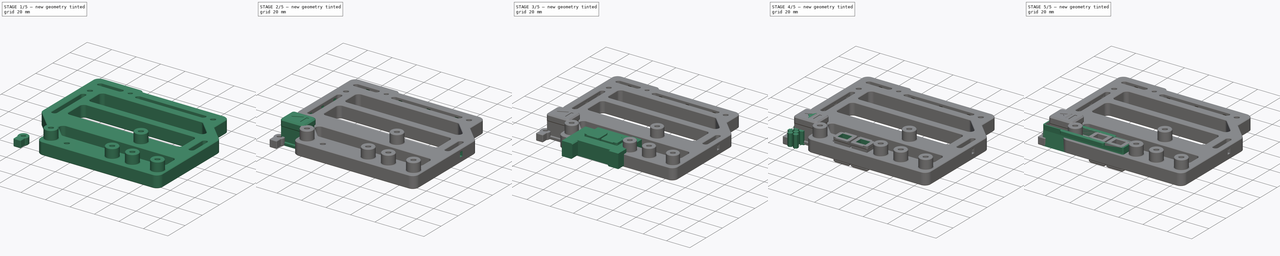
[diagram: build sequence overview — one tinted view per stage of 5, left to right]
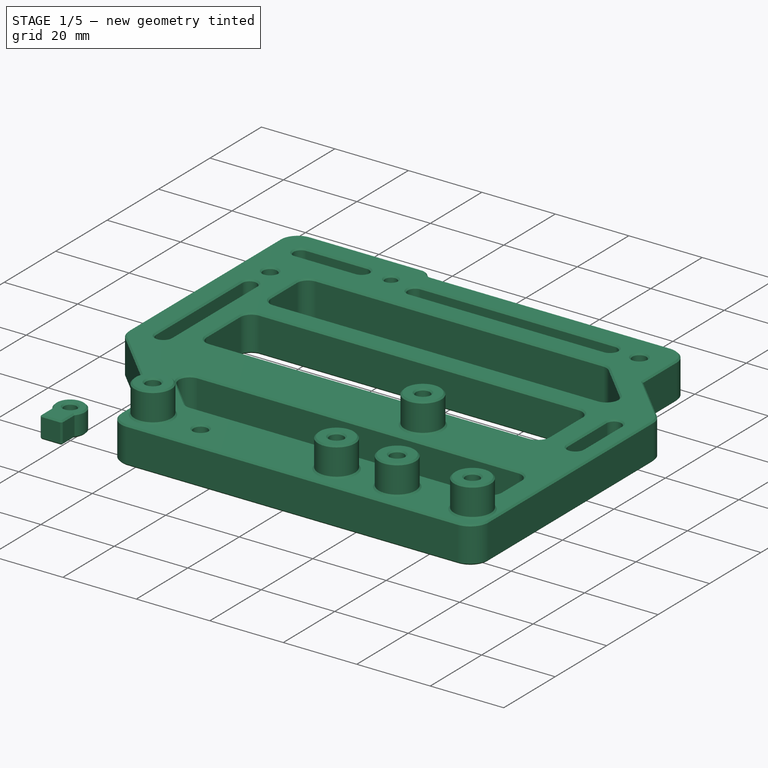
[diagram: stage 1 of 5 — iso view after this stage's code; geometry added in this stage tinted green]
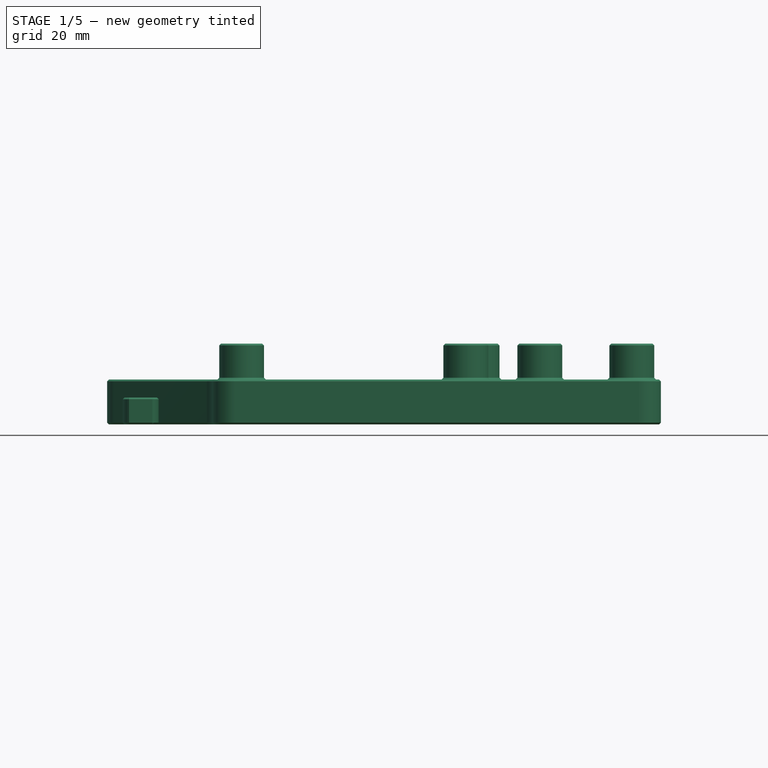
[diagram: stage 1 of 5 — front view after this stage's code; geometry added in this stage tinted green]
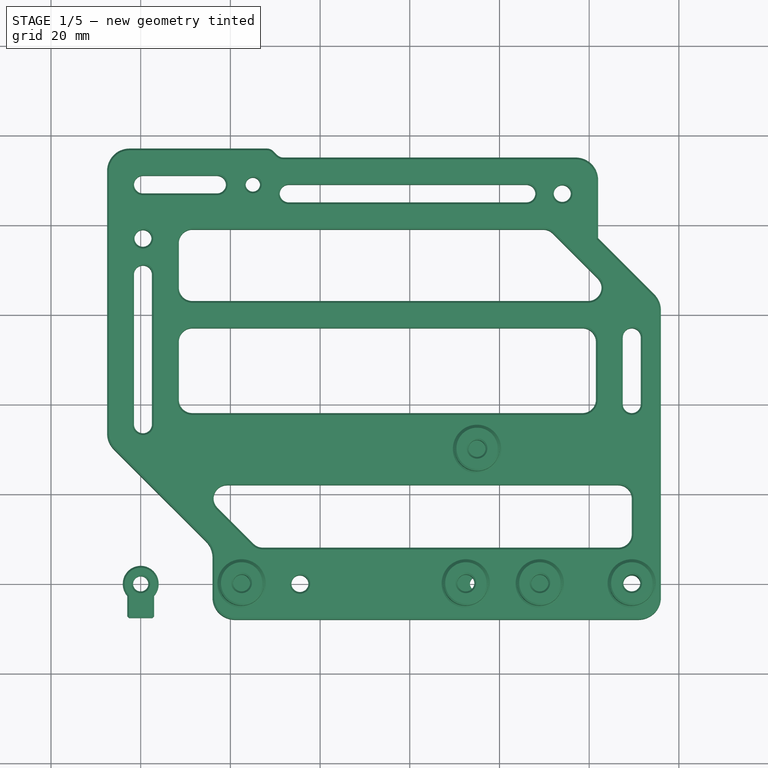
[diagram: stage 1 of 5 — top view after this stage's code; geometry added in this stage tinted green]
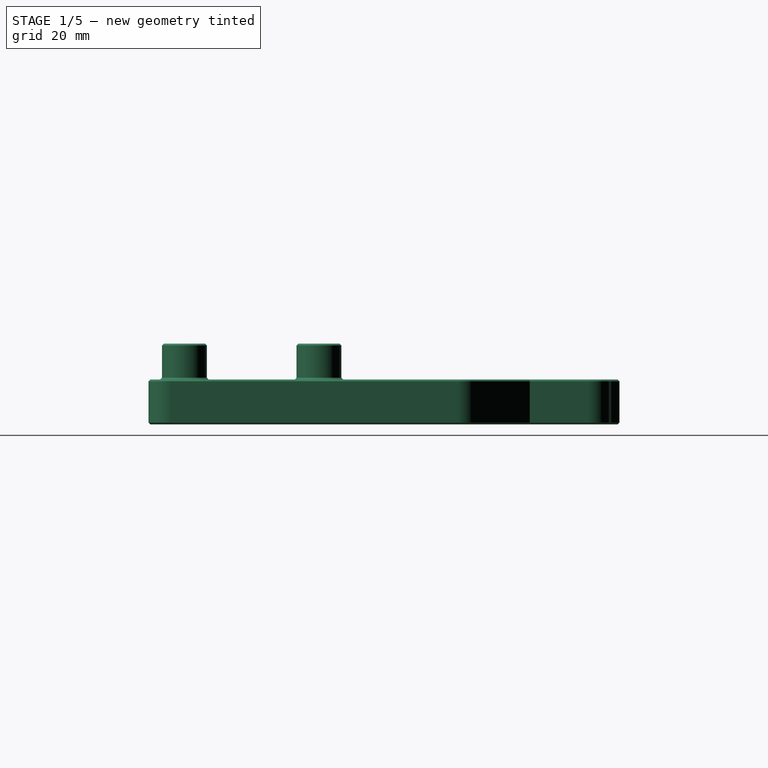
[diagram: stage 1 of 5 — right view after this stage's code; geometry added in this stage tinted green]
FCSTD DOCUMENT  (FreeCAD 0.19R24291 (Git))
Label: auio-pcb-mounter
License: Other
LicenseURL: GPL3
objects: Part::Feature×80, App::Part×52, Part::Box×25, Part::MultiFuse×15, Part::Cut×15, Part::Chamfer×9, Sketcher::SketchObject×8, Part::Cylinder×6, PartDesign::Fillet×5, PartDesign::Pocket×5, Part::Fillet×4, PartDesign::Pad×3, PartDesign::Chamfer×2, PartDesign::Body×2, App::FeaturePython×2, App::AnnotationLabel×2, Spreadsheet::Sheet×1, PartDesign::Plane×1
note: 195 computed .brp shape members not serialized (recipe doc carries the construction recipe); baked Part::Feature solids carry a one-line shape summary decoded from their .brp

FEATURE [Spreadsheet::Sheet] Spreadsheet  label="args"
  cells = A2=ax; B2(a_x)=0; A3=ay; B3(a_y)=0; A4=bx; B4(b_x)=35.5; A5=by; B5(b_y)=0; A6=cx; B6(c_x)=75; A7=xy; B7(c_y)=0; A8=dx; B8(d_x)=109.5; A9=dy; B9(d_y)=0; A10=ex; B10(e_x)=0.5; A11=ey; B11(e_y)=77; A12=fx; B12(f_x)=25; A13=fy; B13(f_y)=89; A14=gx; B14(g_x)=94; A15=gy; B15(g_y)=87; A17=mounting hole small radius; B17(mount_hole_small)=1.6; A18=mounting hole big radius; B18(mount_hole_big)=1.9; B21=12; B22=15.7; B23=19.7; B24=15.7; B25=2.5
FEATURE [Sketcher::SketchObject] Sketch
  FullyConstrained = true
  MapMode = 5
  Support = -> [XY_Plane]
  expr: Constraints[4] = <<args>>.f_x
  expr: Constraints[3] = <<args>>.e_x
  expr: Constraints[0] = <<args>>.b_x
  expr: Constraints[9] = <<args>>.mount_hole_big
  expr: Constraints[17] = <<args>>.g_y
  expr: Constraints[14] = <<args>>.d_y
  expr: Constraints[13] = <<args>>.c_y
  expr: Constraints[7] = <<args>>.mount_hole_big
  expr: Constraints[1] = <<args>>.c_x
  expr: Constraints[12] = <<args>>.b_y
  expr: Constraints[15] = <<args>>.e_y
  expr: Constraints[8] = <<args>>.mount_hole_big
  expr: Constraints[16] = <<args>>.f_y
  expr: Constraints[2] = <<args>>.d_x
  expr: Constraints[5] = <<args>>.g_x
  expr: Constraints[10] = <<args>>.mount_hole_small
  expr: Constraints[6] = <<args>>.mount_hole_big
  expr: Constraints[11] = <<args>>.mount_hole_small
  sketch-geometry (44):
    g0: Circle CenterX=35.5 CenterY=0 CenterZ=0 NormalX=0 NormalY=0 NormalZ=1 AngleXU=0 Radius=1.9
    g1: Circle CenterX=75 CenterY=0 CenterZ=0 NormalX=0 NormalY=0 NormalZ=1 AngleXU=0 Radius=1.6
    g2: Circle CenterX=94 CenterY=87 CenterZ=0 NormalX=0 NormalY=0 NormalZ=1 AngleXU=0 Radius=1.9
    g3: Circle CenterX=25 CenterY=89 CenterZ=0 NormalX=0 NormalY=0 NormalZ=1 AngleXU=0 Radius=1.6
    g4: Circle CenterX=0.5 CenterY=77 CenterZ=0 NormalX=0 NormalY=0 NormalZ=1 AngleXU=0 Radius=1.9
    g5: Circle CenterX=109.5 CenterY=0 CenterZ=0 NormalX=0 NormalY=0 NormalZ=1 AngleXU=0 Radius=1.9
    g6: LineSegment StartX=-7.5 StartY=97 StartZ=0 EndX=-7.5 EndY=31.5 EndZ=0
    g7: LineSegment StartX=16 StartY=-8 StartZ=0 EndX=116 EndY=-8 EndZ=0
    g8: LineSegment StartX=102 StartY=95 StartZ=0 EndX=102 EndY=77 EndZ=0
    g9: LineSegment StartX=-7.5 StartY=31.5 StartZ=0 EndX=16 EndY=8 EndZ=0
    g10: LineSegment StartX=16 StartY=8 StartZ=0 EndX=16 EndY=-8 EndZ=0
    g11: LineSegment StartX=102 StartY=77 StartZ=0 EndX=116 EndY=63 EndZ=0
    g12: LineSegment StartX=116 StartY=63 StartZ=0 EndX=116 EndY=-8 EndZ=0
    g13: ArcOfCircle CenterX=0.5 CenterY=89 CenterZ=0 NormalX=0 NormalY=0 NormalZ=1 AngleXU=0 Radius=2 StartAngle=1.5708 EndAngle=4.71239
    g14: ArcOfCircle CenterX=17 CenterY=89 CenterZ=0 NormalX=0 NormalY=0 NormalZ=1 AngleXU=0 Radius=2 StartAngle=4.71239 EndAngle=7.85398
    g15: LineSegment StartX=0.5 StartY=87 StartZ=0 EndX=17 EndY=87 EndZ=0
    g16: LineSegment StartX=0.5 StartY=91 StartZ=0 EndX=17 EndY=91 EndZ=0
    g17: ArcOfCircle CenterX=0.5 CenterY=69 CenterZ=0 NormalX=0 NormalY=0 NormalZ=1 AngleXU=0 Radius=2 StartAngle=1.8e-15 EndAngle=3.14159
    g18: ArcOfCircle CenterX=0.5 CenterY=35.5 CenterZ=0 NormalX=0 NormalY=0 NormalZ=1 AngleXU=0 Radius=2 StartAngle=3.14159 EndAngle=6.28319
    g19: LineSegment StartX=-1.5 StartY=69 StartZ=0 EndX=-1.5 EndY=35.5 EndZ=0
    g20: LineSegment StartX=2.5 StartY=69 StartZ=0 EndX=2.5 EndY=35.5 EndZ=0
    g21: ArcOfCircle CenterX=109.5 CenterY=55 CenterZ=0 NormalX=0 NormalY=0 NormalZ=1 AngleXU=0 Radius=2 StartAngle=1.7e-15 EndAngle=3.14159
    g22: ArcOfCircle CenterX=109.5 CenterY=40 CenterZ=0 NormalX=0 NormalY=0 NormalZ=1 AngleXU=0 Radius=2 StartAngle=3.14159 EndAngle=6.28319
    g23: LineSegment StartX=107.5 StartY=55 StartZ=0 EndX=107.5 EndY=40 EndZ=0
    g24: LineSegment StartX=111.5 StartY=55 StartZ=0 EndX=111.5 EndY=40 EndZ=0
    g25: LineSegment StartX=-7.5 StartY=97 StartZ=0 EndX=29 EndY=97 EndZ=0
    g26: LineSegment StartX=29 StartY=97 StartZ=0 EndX=31 EndY=95 EndZ=0
    g27: LineSegment StartX=31 StartY=95 StartZ=0 EndX=102 EndY=95 EndZ=0
    g28: ArcOfCircle CenterX=33 CenterY=87 CenterZ=0 NormalX=0 NormalY=0 NormalZ=1 AngleXU=0 Radius=2 StartAngle=1.5708 EndAngle=4.71239
    g29: ArcOfCircle CenterX=86 CenterY=87 CenterZ=0 NormalX=0 NormalY=0 NormalZ=1 AngleXU=0 Radius=2 StartAngle=4.71239 EndAngle=7.85398
    g30: LineSegment StartX=33 StartY=85 StartZ=0 EndX=86 EndY=85 EndZ=0
    g31: LineSegment StartX=33 StartY=89 StartZ=0 EndX=86 EndY=89 EndZ=0
    g32: LineSegment StartX=8.5 StartY=57 StartZ=0 EndX=101.5 EndY=57 EndZ=0
    g33: LineSegment StartX=101.5 StartY=57 StartZ=0 EndX=101.5 EndY=38 EndZ=0
    g34: LineSegment StartX=101.5 StartY=38 StartZ=0 EndX=8.5 EndY=38 EndZ=0
    g35: LineSegment StartX=8.5 StartY=38 StartZ=0 EndX=8.5 EndY=57 EndZ=0
    g36: LineSegment StartX=26 StartY=8 StartZ=0 EndX=109.5 EndY=8 EndZ=0
    g37: LineSegment StartX=109.5 StartY=8 StartZ=0 EndX=109.5 EndY=22 EndZ=0
    g38: LineSegment StartX=109.5 StartY=22 StartZ=0 EndX=12 EndY=22 EndZ=0
    g39: LineSegment StartX=12 StartY=22 StartZ=0 EndX=26 EndY=8 EndZ=0
    g40: LineSegment StartX=8.5 StartY=79 StartZ=0 EndX=8.5 EndY=63 EndZ=0
    g41: LineSegment StartX=8.5 StartY=63 StartZ=0 EndX=107 EndY=63 EndZ=0
    g42: LineSegment StartX=107 StartY=63 StartZ=0 EndX=91 EndY=79 EndZ=0
    g43: LineSegment StartX=91 StartY=79 StartZ=0 EndX=8.5 EndY=79 EndZ=0
  constraints (124):
    c: DistanceX(g-1,g0) = 35.5
    c: DistanceX(g-1,g1) = 75
    c: DistanceX(g-1,g5) = 109.5
    c: DistanceX(g-1,g4) = 0.5
    c: DistanceX(g-1,g3) = 25
    c: DistanceX(g-1,g2) = 94
    c: Radius(g0) = 1.9
    c: Radius(g5) = 1.9
    c: Radius(g4) = 1.9
    c: Radius(g2) = 1.9
    c: Radius(g1) = 1.6
    c: Radius(g3) = 1.6
    c: DistanceY(g0,g-1) = 0
    c: DistanceY(g-1,g1) = 0
    c: DistanceY(g5,g-1) = 0
    c: DistanceY(g-1,g4) = 77
    c: DistanceY(g-1,g3) = 89
    c: DistanceY(g-1,g2) = 87
    c: Horizontal(g7)
    c: Vertical(g8)
    c: DistanceX(g7,g0) = 19.5
    c: DistanceX(g5,g7) = 6.5
    c: DistanceY(g7,g0) = 8
    c: Vertical(g6)
    c: DistanceY(g3,g6) = 8
    c: DistanceX(g6,g4) = 8
    c: DistanceX(g2,g8) = 8
    c: DistanceY(g8,g2) = 10
    c: Coincident(g6,g9)
    c: Coincident(g9,g10)
    c: Coincident(g10,g7)
    c: Vertical(g10)
    c: Coincident(g8,g11)
    c: Coincident(g11,g12)
    c: Vertical(g12)
    c: Angle(g9,g6) = 2.35619
    c: Coincident(g12,g7)
    c: Angle(g11,g8) = 2.35619
    c: DistanceY(g0,g9) = 8
    c: Tangent(g13,g16) = 1.5708
    c: Tangent(g13,g15) = -1.5708
    c: Tangent(g15,g14) = -1.5708
    c: Tangent(g16,g14) = 1.5708
    c: Horizontal(g15)
    c: Equal(g13,g14)
    c: Tangent(g17,g20) = 1.5708
    c: Tangent(g17,g19) = -1.5708
    c: Tangent(g19,g18) = -1.5708
    c: Tangent(g20,g18) = 1.5708
    c: Vertical(g19)
    c: Equal(g17,g18)
    c: Tangent(g21,g24) = 1.5708
    c: Tangent(g21,g23) = -1.5708
    c: Tangent(g23,g22) = -1.5708
    c: Tangent(g24,g22) = 1.5708
    c: Vertical(g23)
    c: Equal(g21,g22)
    c: Vertical(g5,g22)
    c: Vertical(g13,g4)
    c: Horizontal(g14,g3)
    c: Vertical(g4,g17)
    c: DistanceY(g17,g4) = 8
    c: DistanceY(g5,g22) = 40
    c: Radius(g14) = 2
    c: DistanceX(g14,g3) = 8
    c: Radius(g17) = 2
    c: DistanceY(g6,g18) = 4
    c: DistanceY(g21,g11) = 8
    c: Radius(g21) = 2
    c: DistanceY(g2,g8) = 8
    c: Coincident(g6,g25)
    c: Horizontal(g25)
    c: Coincident(g25,g26)
    c: Coincident(g26,g27)
    c: Coincident(g27,g8)
    c: Horizontal(g27)
    c: Angle(g25,g26) = 2.35619
    c: Tangent(g28,g31) = 1.5708
    c: Tangent(g28,g30) = -1.5708
    c: Tangent(g30,g29) = -1.5708
    c: Tangent(g31,g29) = 1.5708
    c: Horizontal(g30)
    c: Equal(g28,g29)
    c: Radius(g28) = 2
    c: DistanceX(g3,g25) = 4
    c: Horizontal(g29,g2)
    c: DistanceX(g29,g2) = 8
    c: DistanceX(g3,g28) = 8
    c: Coincident(g32,g33)
    c: Coincident(g33,g34)
    c: Coincident(g34,g35)
    c: Coincident(g35,g32)
    c: Horizontal(g32)
    c: Horizontal(g34)
    c: Vertical(g33)
    c: Vertical(g35)
    c: DistanceY(g33,g22) = 2
    c: DistanceX(g33,g22) = 8
    c: DistanceX(g18,g34) = 8
    c: Horizontal(g36)
    c: Coincident(g36,g37)
    c: Vertical(g37)
    c: Coincident(g37,g38)
    c: Horizontal(g38)
    c: Coincident(g38,g39)
    c: DistanceY(g5,g36) = 8
    c: Coincident(g36,g39)
    c: Angle(g39,g38) = 0.785398
    c: DistanceX(g9,g36) = 10
    c: DistanceY(g37,g37) = 14
    c: Vertical(g36,g5)
    c: Vertical(g40)
    c: Coincident(g40,g41)
    c: Horizontal(g41)
    c: Coincident(g41,g42)
    c: Coincident(g42,g43)
    c: Coincident(g43,g40)
    c: Horizontal(g43)
    c: Vertical(g40,g32)
    c: DistanceY(g40,g28) = 8
    c: DistanceY(g32,g40) = 6
    c: Angle(g42,g41) = 0.785398
    c: DistanceX(g42,g8) = 11
    c: Horizontal(g41,g11)
FEATURE [PartDesign::Pad] Pad
  Direction = (1,1,1)
  Length = 10
  Length2 = 100
  Profile = -> Sketch
  Type = 0
FEATURE [Part::Feature] Part__Feature  label="SOLID"
  shape: bbox 2.54 x 5.08 x 11.54 mm, 52 faces (baked)
FEATURE [App::Part] PinHeader_1x02_P2_54mm_Vertical  label="PinHeader_1x02_P2.54mm_Vertical"
  Group = -> [Part__Feature]
  Origin = -> Origin001
  Placement = pos=(22.335,15.27,1.65) rot=(0,0,1;1.5708rad)
FEATURE [Part::Feature] Part__Feature001  label="SOLID001"
  shape: bbox 2 x 1.2 x 0.45 mm, 26 faces (baked)
FEATURE [App::Part] R_0805_2012Metric
  Group = -> [Part__Feature001]
  Origin = -> Origin002
  Placement = pos=(36.9,15.27,1.65) rot=(0,0,1;3.14159rad)
FEATURE [Part::Feature] Part__Feature002  label="SOLID002"
  shape: bbox 7.874 x 9.27 x 6.98 mm, 148 faces (baked)
FEATURE [App::Part] DIP_8_W7_62mm  label="DIP-8_W7.62mm"
  Group = -> [Part__Feature002]
  Origin = -> Origin003
  Placement = pos=(14.875,5.27,1.65) rot=(0,0,-1;1.5708rad)
FEATURE [Part::Feature] Part__Feature003  label="SOLID003"
  shape: bbox 9.886 x 10.23 x 10 mm, 54 faces (baked)
FEATURE [App::Part] CP_Radial_D8_0mm_P3_50mm  label="CP_Radial_D8.0mm_P3.50mm"
  Group = -> [Part__Feature003]
  Origin = -> Origin004
  Placement = pos=(28.625,10.77,1.65) rot=(0,0,-1;1.5708rad)
FEATURE [Part::Feature] Part__Feature004  label="SOLID004"
  shape: bbox 2 x 1.2 x 0.45 mm, 26 faces (baked)
FEATURE [App::Part] R_0805_2012Metric001
  Group = -> [Part__Feature004]
  Origin = -> Origin005
  Placement = pos=(-14.4,-21.98,1.65) rot=(0,0,1;0rad)
FEATURE [Part::Feature] Part__Feature005  label="SOLID005"
  shape: bbox 10.16 x 5.08 x 7.787 mm, 69 faces (baked)
FEATURE [App::Part] DIP_4_W7_62mm_Socket  label="DIP-4_W7.62mm_Socket"
  Group = -> [Part__Feature005]
  Origin = -> Origin006
  Placement = pos=(-34.875,8.52,1.65) rot=(0,0,-1;1.5708rad)
FEATURE [Part::Feature] Part__Feature006  label="SOLID006"
  shape: bbox 9.886 x 10.23 x 10 mm, 54 faces (baked)
FEATURE [App::Part] CP_Radial_D8_0mm_P3_50mm001  label="CP_Radial_D8.0mm_P3.50mm001"
  Group = -> [Part__Feature006]
  Origin = -> Origin007
  Placement = pos=(-7.125,3.77,1.65) rot=(0,0,1;0rad)
FEATURE [Part::Feature] Part__Feature007  label="SOLID007"
  shape: bbox 9.886 x 10.23 x 10 mm, 54 faces (baked)
FEATURE [App::Part] CP_Radial_D8_0mm_P3_50mm002  label="CP_Radial_D8.0mm_P3.50mm002"
  Group = -> [Part__Feature007]
  Origin = -> Origin008
  Placement = pos=(-7.125,-5.23,1.65) rot=(0,0,1;0rad)
FEATURE [Part::Feature] Part__Feature008  label="SOLID008"
  shape: bbox 9.886 x 10.23 x 10 mm, 54 faces (baked)
FEATURE [App::Part] CP_Radial_D8_0mm_P3_50mm003  label="CP_Radial_D8.0mm_P3.50mm003"
  Group = -> [Part__Feature008]
  Origin = -> Origin009
  Placement = pos=(28.625,1.77,1.65) rot=(0,0,-1;1.5708rad)
FEATURE [Part::Feature] Part__Feature009  label="SOLID009"
  shape: bbox 2 x 1.2 x 0.45 mm, 26 faces (baked)
FEATURE [App::Part] R_0805_2012Metric002
  Group = -> [Part__Feature009]
  Origin = -> Origin010
  Placement = pos=(-11.125,8.245,1.65) rot=(0,0,-1;1.5708rad)
FEATURE [Part::Feature] Part__Feature010  label="SOLID010"
  shape: bbox 2 x 1.2 x 0.45 mm, 26 faces (baked)
FEATURE [App::Part] R_0805_2012Metric003
  Group = -> [Part__Feature010]
  Origin = -> Origin011
  Placement = pos=(14.65,9.77,1.65) rot=(0,0,1;3.14159rad)
FEATURE [Part::Feature] Part__Feature011  label="SOLID011"
  shape: bbox 2 x 1.2 x 0.45 mm, 26 faces (baked)
FEATURE [App::Part] R_0805_2012Metric004
  Group = -> [Part__Feature011]
  Origin = -> Origin012
  Placement = pos=(10.9,-5.23,1.65) rot=(0,0,1;3.14159rad)
FEATURE [Part::Feature] Part__Feature012  label="SOLID012"
  shape: bbox 2 x 1.2 x 0.45 mm, 26 faces (baked)
FEATURE [App::Part] R_0805_2012Metric005
  Group = -> [Part__Feature012]
  Origin = -> Origin013
  Placement = pos=(3.875,10.795,1.65) rot=(0,0,1;1.5708rad)
FEATURE [Part::Feature] Part__Feature013  label="SOLID013"
  shape: bbox 9.886 x 10.23 x 10 mm, 54 faces (baked)
FEATURE [App::Part] CP_Radial_D8_0mm_P3_50mm004  label="CP_Radial_D8.0mm_P3.50mm004"
  Group = -> [Part__Feature013]
  Origin = -> Origin014
  Placement = pos=(37.875,7.27,1.65) rot=(0,0,1;1.5708rad)
FEATURE [Part::Feature] Part__Feature014  label="SOLID014"
  shape: bbox 9.886 x 10.23 x 10 mm, 54 faces (baked)
FEATURE [App::Part] CP_Radial_D8_0mm_P3_50mm005  label="CP_Radial_D8.0mm_P3.50mm005"
  Group = -> [Part__Feature014]
  Origin = -> Origin015
  Placement = pos=(37.875,-1.73,1.65) rot=(0,0,1;1.5708rad)
FEATURE [Part::Feature] Part__Feature015  label="SOLID015"
  shape: bbox 2 x 1.2 x 0.45 mm, 26 faces (baked)
FEATURE [App::Part] R_0805_2012Metric006
  Group = -> [Part__Feature015]
  Origin = -> Origin016
  Placement = pos=(-22.9,-7.73,1.65) rot=(0,0,1;3.14159rad)
FEATURE [Part::Feature] Part__Feature016  label="SOLID016"
  shape: bbox 2 x 1.2 x 0.45 mm, 26 faces (baked)
FEATURE [App::Part] R_0805_2012Metric007
  Group = -> [Part__Feature016]
  Origin = -> Origin017
  Placement = pos=(-31.625,7.495,1.65) rot=(0,0,1;1.5708rad)
FEATURE [Part::Feature] Part__Feature017  label="SOLID017"
  shape: bbox 2 x 1.2 x 0.45 mm, 26 faces (baked)
FEATURE [App::Part] R_0805_2012Metric008
  Group = -> [Part__Feature017]
  Origin = -> Origin018
  Placement = pos=(-19.1,-21.98,1.65) rot=(0,0,1;3.14159rad)
FEATURE [Part::Feature] Part__Feature018  label="SOLID018"
  shape: bbox 17.4 x 5.75 x 10.4 mm, 189 faces (baked)
FEATURE [App::Part] JST_XH_B06B_XH_A_1x06_P2_50mm_Vertical  label="JST_XH_B06B-XH-A_1x06_P2.50mm_Vertical"
  Group = -> [Part__Feature018]
  Origin = -> Origin019
  Placement = pos=(22.519,20.828,1.65) rot=(0,0,1;0rad)
FEATURE [Part::Feature] Part__Feature019  label="SOLID019"
  shape: bbox 7.4 x 5.75 x 10.4 mm, 89 faces (baked)
FEATURE [App::Part] JST_XH_B02B_XH_A_1x02_P2_50mm_Vertical  label="JST_XH_B02B-XH-A_1x02_P2.50mm_Vertical"
  Group = -> [Part__Feature019]
  Origin = -> Origin020
  Placement = pos=(46.875,8.27,1.65) rot=(0,0,-1;1.5708rad)
FEATURE [Part::Feature] Part__Feature020  label="SOLID020"
  shape: bbox 7.4 x 5.75 x 10.4 mm, 89 faces (baked)
FEATURE [App::Part] JST_XH_B02B_XH_A_1x02_P2_50mm_Vertical001  label="JST_XH_B02B-XH-A_1x02_P2.50mm_Vertical001"
  Group = -> [Part__Feature020]
  Origin = -> Origin021
  Placement = pos=(-46.863,18.074,1.65) rot=(0,0,1;1.5708rad)
FEATURE [Part::Feature] Part__Feature021  label="SOLID021"
  shape: bbox 9.9 x 5.75 x 10.4 mm, 117 faces (baked)
FEATURE [App::Part] JST_XH_B03B_XH_A_1x03_P2_50mm_Vertical  label="JST_XH_B03B-XH-A_1x03_P2.50mm_Vertical"
  Group = -> [Part__Feature021]
  Origin = -> Origin022
  Placement = pos=(41.863,20.828,1.65) rot=(0,0,1;0rad)
FEATURE [Part::Feature] Part__Feature022  label="SOLID022"
  shape: bbox 2 x 1.2 x 0.45 mm, 26 faces (baked)
FEATURE [App::Part] R_0805_2012Metric009
  Group = -> [Part__Feature022]
  Origin = -> Origin023
  Placement = pos=(22.35,12.52,1.65) rot=(0,0,1;0rad)
FEATURE [Part::Feature] Part__Feature023  label="SOLID023"
  shape: bbox 2 x 1.2 x 0.45 mm, 26 faces (baked)
FEATURE [App::Part] R_0805_2012Metric010
  Group = -> [Part__Feature023]
  Origin = -> Origin024
  Placement = pos=(-40.625,7.52,1.65) rot=(0,0,-1;1.5708rad)
FEATURE [Part::Feature] Part__Feature024  label="SOLID024"
  shape: bbox 2 x 1.2 x 0.45 mm, 26 faces (baked)
FEATURE [App::Part] R_0805_2012Metric011
  Group = -> [Part__Feature024]
  Origin = -> Origin025
  Placement = pos=(9.85,7.52,1.65) rot=(0,0,1;3.14159rad)
FEATURE [Part::Feature] Part__Feature025  label="SOLID025"
  shape: bbox 2 x 1.2 x 0.45 mm, 26 faces (baked)
FEATURE [App::Part] R_0805_2012Metric012
  Group = -> [Part__Feature025]
  Origin = -> Origin026
  Placement = pos=(14.65,12.02,1.65) rot=(0,0,1;0rad)
FEATURE [Part::Feature] Part__Feature026  label="SOLID026"
  shape: bbox 2 x 1.2 x 0.45 mm, 26 faces (baked)
FEATURE [App::Part] R_0805_2012Metric013
  Group = -> [Part__Feature026]
  Origin = -> Origin027
  Placement = pos=(4.1,-5.23,1.65) rot=(0,0,1;3.14159rad)
FEATURE [Part::Feature] Part__Feature027  label="SOLID027"
  shape: bbox 2 x 1.2 x 0.45 mm, 26 faces (baked)
FEATURE [App::Part] R_0805_2012Metric014
  Group = -> [Part__Feature027]
  Origin = -> Origin028
  Placement = pos=(18.9,0.02,1.65) rot=(0,0,1;0rad)
FEATURE [Part::Feature] Part__Feature028  label="SOLID028"
  shape: bbox 2 x 1.2 x 0.45 mm, 26 faces (baked)
FEATURE [App::Part] R_0805_2012Metric015
  Group = -> [Part__Feature028]
  Origin = -> Origin029
  Placement = pos=(-1.625,10.745,1.65) rot=(0,0,-1;1.5708rad)
FEATURE [Part::Feature] Part__Feature029  label="SOLID029"
  shape: bbox 2 x 1.2 x 0.45 mm, 26 faces (baked)
FEATURE [App::Part] R_0805_2012Metric016
  Group = -> [Part__Feature029]
  Origin = -> Origin030
  Placement = pos=(1.125,10.745,1.65) rot=(0,0,1;1.5708rad)
FEATURE [Part::Feature] Part__Feature030  label="SOLID030"
  shape: bbox 2 x 1.2 x 0.45 mm, 26 faces (baked)
FEATURE [App::Part] R_0805_2012Metric017
  Group = -> [Part__Feature030]
  Origin = -> Origin031
  Placement = pos=(14.65,7.52,1.65) rot=(0,0,1;3.14159rad)
FEATURE [Part::Feature] Part__Feature031  label="SOLID031"
  shape: bbox 2 x 1.2 x 0.45 mm, 26 faces (baked)
FEATURE [App::Part] R_0805_2012Metric018
  Group = -> [Part__Feature031]
  Origin = -> Origin032
  Placement = pos=(10.9,-7.73,1.65) rot=(0,0,1;3.14159rad)
FEATURE [Part::Feature] Part__Feature032  label="SOLID032"
  shape: bbox 2 x 1.2 x 0.45 mm, 26 faces (baked)
FEATURE [App::Part] R_0805_2012Metric019
  Group = -> [Part__Feature032]
  Origin = -> Origin033
  Placement = pos=(47.35,14.52,1.65) rot=(0,0,1;3.14159rad)
FEATURE [Part::Feature] Part__Feature033  label="SOLID033"
  shape: bbox 2 x 1.2 x 0.45 mm, 26 faces (baked)
FEATURE [App::Part] R_0805_2012Metric020
  Group = -> [Part__Feature033]
  Origin = -> Origin034
  Placement = pos=(47.35,-0.48,1.65) rot=(0,0,1;3.14159rad)
FEATURE [Part::Feature] Part__Feature034  label="SOLID034"
  shape: bbox 2 x 1.2 x 0.45 mm, 26 faces (baked)
FEATURE [App::Part] R_0805_2012Metric021
  Group = -> [Part__Feature034]
  Origin = -> Origin035
  Placement = pos=(47.35,12.27,1.65) rot=(0,0,1;3.14159rad)
FEATURE [Part::Feature] Part__Feature035  label="SOLID035"
  shape: bbox 2 x 1.2 x 0.45 mm, 26 faces (baked)
FEATURE [App::Part] R_0805_2012Metric022
  Group = -> [Part__Feature035]
  Origin = -> Origin036
  Placement = pos=(47.35,1.77,1.65) rot=(0,0,1;3.14159rad)
FEATURE [Part::Feature] Part__Feature036  label="SOLID036"
  shape: bbox 2 x 1.2 x 0.45 mm, 26 faces (baked)
FEATURE [App::Part] R_0805_2012Metric023
  Group = -> [Part__Feature036]
  Origin = -> Origin037
  Placement = pos=(37.125,-17.505,1.65) rot=(0,0,-1;1.5708rad)
FEATURE [Part::Feature] Part__Feature037  label="SOLID037"
  shape: bbox 2 x 1.2 x 0.45 mm, 26 faces (baked)
FEATURE [App::Part] R_0805_2012Metric024
  Group = -> [Part__Feature037]
  Origin = -> Origin038
  Placement = pos=(16.625,-17.505,1.65) rot=(0,0,-1;1.5708rad)
FEATURE [Part::Feature] Part__Feature038  label="SOLID038"
  shape: bbox 2 x 1.2 x 0.45 mm, 26 faces (baked)
FEATURE [App::Part] R_0805_2012Metric025
  Group = -> [Part__Feature038]
  Origin = -> Origin039
  Placement = pos=(0.125,-17.505,1.65) rot=(0,0,-1;1.5708rad)
FEATURE [Part::Feature] Part__Feature039  label="SOLID039"
  shape: bbox 2 x 1.2 x 0.45 mm, 26 faces (baked)
FEATURE [App::Part] R_0805_2012Metric026
  Group = -> [Part__Feature039]
  Origin = -> Origin040
  Placement = pos=(-29.125,7.52,1.65) rot=(0,0,1;1.5708rad)
FEATURE [Part::Feature] Part__Feature040  label="SOLID040"
  shape: bbox 7.4 x 12.4 x 11 mm, 130 faces (baked)
FEATURE [App::Part] SW_Tactile_SPST_Angled_PTS645Vx83_2LFS  label="SW_Tactile_SPST_Angled_PTS645Vx83-2LFS"
  Group = -> [Part__Feature040]
  Origin = -> Origin041
  Placement = pos=(-41.365,-21.336,1.65) rot=(0,0,1;3.14159rad)
FEATURE [Part::Feature] Part__Feature041  label="SOLID041"
  shape: bbox 7.4 x 12.4 x 11 mm, 130 faces (baked)
FEATURE [App::Part] SW_Tactile_SPST_Angled_PTS645Vx83_2LFS001  label="SW_Tactile_SPST_Angled_PTS645Vx83-2LFS001"
  Group = -> [Part__Feature041]
  Origin = -> Origin042
  Placement = pos=(45.625,-21.22,1.65) rot=(0,0,1;3.14159rad)
FEATURE [Part::Feature] Part__Feature042  label="SOLID042"
  shape: bbox 7.4 x 12.4 x 11 mm, 130 faces (baked)
FEATURE [App::Part] SW_Tactile_SPST_Angled_PTS645Vx83_2LFS002  label="SW_Tactile_SPST_Angled_PTS645Vx83-2LFS002"
  Group = -> [Part__Feature042]
  Origin = -> Origin043
  Placement = pos=(25.125,-21.22,1.65) rot=(0,0,1;3.14159rad)
FEATURE [Part::Feature] Part__Feature043  label="SOLID043"
  shape: bbox 7.4 x 12.4 x 11 mm, 130 faces (baked)
FEATURE [App::Part] SW_Tactile_SPST_Angled_PTS645Vx83_2LFS003  label="SW_Tactile_SPST_Angled_PTS645Vx83-2LFS003"
  Group = -> [Part__Feature043]
  Origin = -> Origin044
  Placement = pos=(8.625,-21.336,1.65) rot=(0,0,1;3.14159rad)
FEATURE [Part::Feature] Part__Feature044  label="SOLID044"
  shape: bbox 2 x 1.2 x 0.45 mm, 26 faces (baked)
FEATURE [App::Part] R_0805_2012Metric027
  Group = -> [Part__Feature044]
  Origin = -> Origin045
  Placement = pos=(18.85,-2.23,1.65) rot=(0,0,1;0rad)
FEATURE [Part::Feature] Part__Feature045  label="SOLID045"
  shape: bbox 12.36 x 12.78 x 12 mm, 48 faces (baked)
FEATURE [App::Part] CP_Radial_D10_0mm_P5_00mm  label="CP_Radial_D10.0mm_P5.00mm"
  Group = -> [Part__Feature045]
  Origin = -> Origin046
  Placement = pos=(-1.625,18.02,1.65) rot=(0,0,1;3.14159rad)
FEATURE [Part::Feature] Part__Feature046  label="SOLID046"
  shape: bbox 12.36 x 12.78 x 12 mm, 48 faces (baked)
FEATURE [App::Part] CP_Radial_D10_0mm_P5_00mm001  label="CP_Radial_D10.0mm_P5.00mm001"
  Group = -> [Part__Feature046]
  Origin = -> Origin047
  Placement = pos=(-12.625,18.02,1.65) rot=(0,0,1;3.14159rad)
FEATURE [Part::Feature] Part__Feature047  label="SOLID047"
  shape: bbox 12.36 x 12.78 x 12 mm, 48 faces (baked)
FEATURE [App::Part] CP_Radial_D10_0mm_P5_00mm002  label="CP_Radial_D10.0mm_P5.00mm002"
  Group = -> [Part__Feature047]
  Origin = -> Origin048
  Placement = pos=(-34.625,17.77,1.65) rot=(0,0,1;3.14159rad)
FEATURE [Part::Feature] Part__Feature048  label="SOLID048"
  shape: bbox 12.36 x 12.78 x 12 mm, 48 faces (baked)
FEATURE [App::Part] CP_Radial_D10_0mm_P5_00mm003  label="CP_Radial_D10.0mm_P5.00mm003"
  Group = -> [Part__Feature048]
  Origin = -> Origin049
  Placement = pos=(-23.625,17.77,1.65) rot=(0,0,1;3.14159rad)
FEATURE [Part::Feature] Part__Feature049  label="SOLID049"
  shape: bbox 9.9 x 5.75 x 10.4 mm, 117 faces (baked)
FEATURE [App::Part] JST_XH_B03B_XH_A_1x03_P2_50mm_Vertical001  label="JST_XH_B03B-XH-A_1x03_P2.50mm_Vertical001"
  Group = -> [Part__Feature049]
  Origin = -> Origin050
  Placement = pos=(-46.863,6.27,1.65) rot=(0,0,1;1.5708rad)
FEATURE [Part::Feature] Part__Feature050  label="SOLID050"
  shape: bbox 2.54 x 5.08 x 11.54 mm, 52 faces (baked)
FEATURE [App::Part] PinHeader_1x02_P2_54mm_Vertical001  label="PinHeader_1x02_P2.54mm_Vertical001"
  Group = -> [Part__Feature050]
  Origin = -> Origin051
  Placement = pos=(30.335,15.27,1.65) rot=(0,0,1;1.5708rad)
FEATURE [Part::Feature] Part__Feature051  label="COMPOUND"
  shape: bbox 99.82 x 48.26 x 1.6 mm, 88 faces (baked)
FEATURE [App::Part] Open_CASCADE_STEP_translator_6_9_1  label="Open CASCADE STEP translator 6.9 1"
  Group = -> [PinHeader_1x02_P2_54mm_Vertical,R_0805_2012Metric,DIP_8_W7_62mm,CP_Radial_D8_0mm_P3_50mm,R_0805_2012Metric001,DIP_4_W7_62mm_Socket,CP_Radial_D8_0mm_P3_50mm001,CP_Radial_D8_0mm_P3_50mm002,CP_Radial_D8_0mm_P3_50mm003,R_0805_2012Metric002,R_0805_2012Metric003,R_0805_2012Metric004,R_0805_2012Metric005,CP_Radial_D8_0mm_P3_50mm004,CP_Radial_D8_0mm_P3_50mm005,R_0805_2012Metric006,R_0805_2012Metric007,+35 more]
  Origin = -> Origin052
  Placement = pos=(66.1,12.7,17) rot=(0,0,1;0rad)
FEATURE [PartDesign::Fillet] Fillet
  Base = -> Pad [Edge1,Edge2,Edge5,Edge8,Edge11,Edge14,Edge20]
  BaseFeature = -> Pad
  Radius = 5
  SupportTransform = false
FEATURE [PartDesign::Fillet] Fillet001
  Base = -> Fillet [Edge107,Edge109]
  BaseFeature = -> Fillet
  Radius = 2
  SupportTransform = false
FEATURE [PartDesign::Fillet] Fillet002
  Base = -> Fillet001 [Edge101,Edge100,Edge108,Edge93,Edge97,Edge113,Edge103,Edge109,Edge92,Edge95,Edge111,Edge105]
  BaseFeature = -> Fillet001
  Radius = 3
  SupportTransform = false
FEATURE [PartDesign::Plane] DatumPlane
  AttachmentOffset = pos=(0,0,9) rot=(0,0,1;0rad)
  Length = 167.231
  MapMode = 5
  Placement = pos=(0,0,9) rot=(0,0,1;0rad)
  ResizeMode = 0
  Support = -> [XY_Plane]
  Width = 148.231
FEATURE [Sketcher::SketchObject] Sketch001
  FullyConstrained = true
  MapMode = 5
  Placement = pos=(0,0,9) rot=(0,0,1;0rad)
  Support = -> [DatumPlane]
  expr: Constraints[9] = <<args>>.mount_hole_big
  expr: Constraints[11] = <<args>>.mount_hole_big
  expr: Constraints[10] = <<args>>.mount_hole_big
  expr: Constraints[12] = <<args>>.mount_hole_big
  expr: Constraints[13] = <<args>>.mount_hole_big
  expr: Constraints[21] = <<args>>.d_x
  sketch-geometry (10):
    g0: Circle CenterX=109.5 CenterY=0 CenterZ=0 NormalX=0 NormalY=0 NormalZ=1 AngleXU=0 Radius=5
    g1: Circle CenterX=109.5 CenterY=0 CenterZ=0 NormalX=0 NormalY=0 NormalZ=1 AngleXU=0 Radius=1.9
    g2: Circle CenterX=89 CenterY=0 CenterZ=0 NormalX=0 NormalY=0 NormalZ=1 AngleXU=0 Radius=5
    g3: Circle CenterX=89 CenterY=0 CenterZ=0 NormalX=0 NormalY=0 NormalZ=1 AngleXU=0 Radius=1.9
    g4: Circle CenterX=72.5 CenterY=0 CenterZ=0 NormalX=0 NormalY=0 NormalZ=1 AngleXU=0 Radius=5
    g5: Circle CenterX=72.5 CenterY=0 CenterZ=0 NormalX=0 NormalY=0 NormalZ=1 AngleXU=0 Radius=1.9
    g6: Circle CenterX=22.5 CenterY=0 CenterZ=0 NormalX=0 NormalY=0 NormalZ=1 AngleXU=0 Radius=5
    g7: Circle CenterX=22.5 CenterY=0 CenterZ=0 NormalX=0 NormalY=0 NormalZ=1 AngleXU=0 Radius=1.9
    g8: Circle CenterX=75 CenterY=30 CenterZ=0 NormalX=0 NormalY=0 NormalZ=1 AngleXU=0 Radius=5
    g9: Circle CenterX=75 CenterY=30 CenterZ=0 NormalX=0 NormalY=0 NormalZ=1 AngleXU=0 Radius=1.9
  constraints (25):
    c: PointOnObject(g0,g-1)
    c: Coincident(g1,g0)
    c: PointOnObject(g2,g-1)
    c: Coincident(g3,g2)
    c: PointOnObject(g4,g-1)
    c: Coincident(g5,g4)
    c: PointOnObject(g6,g-1)
    c: Coincident(g7,g6)
    c: Coincident(g9,g8)
    c: Radius(g9) = 1.9
    c: Radius(g1) = 1.9
    c: Radius(g3) = 1.9
    c: Radius(g5) = 1.9
    c: Radius(g7) = 1.9
    c: Radius(g6) = 5
    c: Radius(g4) = 5
    c: Radius(g2) = 5
    c: Radius(g0) = 5
    c: Radius(g8) = 5
    c: DistanceX(g4,g8) = 2.5
    c: DistanceY(g4,g8) = 30
    c: DistanceX(g-1,g0) = 109.5
    c: DistanceX(g2,g0) = 20.5
    c: DistanceX(g4,g2) = 16.5
    c: DistanceX(g6,g4) = 50
FEATURE [PartDesign::Pad] Pad001
  BaseFeature = -> Fillet002
  Direction = (1,1,1)
  Length = 9
  Length2 = 100
  Profile = -> Sketch001
  Type = 0
FEATURE [PartDesign::Chamfer] Chamfer
  Angle = 45
  Base = -> Pad001 [Face1,Face67,Face79,Face82,Face78,Face80,Face81]
  BaseFeature = -> Pad001
  ChamferType = 0
  FlipDirection = false
  Size = 0.4
  Size2 = 1
  SupportTransform = false
FEATURE [PartDesign::Body] Body  label="under-plate"
  Group = -> [Sketch,Pad,Fillet,Fillet001,Fillet002,DatumPlane,Sketch001,Pad001,Chamfer,Sketch005,Pocket002,Sketch006,Pocket003,Sketch007,Pocket004,Chamfer009008004003002002004004004004]
  Origin = -> Origin
  Tip = -> Chamfer009008004003002002004004004004
FEATURE [App::FeaturePython] Dimension  label="Distance"  # Draft dimension (typed FeaturePython)
  Diameter = false
  Dimline = (44.2948,2.502,20.4)
  Direction = (0,0,0)
  Distance = 48.2787
  End = (66.1,12.7,18.6)
  Normal = (0,0,1)
  Start = (22.4895,-7.696,22.2)
FEATURE [App::AnnotationLabel] DistanceLbl
  BasePosition = (44.2948,2.502,20.4)
  LabelText = ds: 48.2786512363643 mm | dx: 43.61045 | dy: 20.395999999999997 | dz: 3.599999999999998
  TextPosition = (0,0,0)
FEATURE [App::FeaturePython] Dimension001  label="Distance001"  # Draft dimension (typed FeaturePython)
  Diameter = false
  Dimline = (22.4823,-3.863,20.4)
  Direction = (0,0,0)
  Distance = 8.46922
  End = (22.475,-0.03,18.6)
  Normal = (0,0,1)
  Start = (22.4895,-7.696,22.2)
FEATURE [App::AnnotationLabel] DistanceLbl001
  BasePosition = (22.4823,-3.863,20.4)
  LabelText = ds: 8.469224740346661 mm | dx: 0.01454999999999984 | dy: 7.665999999999999 | dz: 3.599999999999998
  TextPosition = (0,0,0)
FEATURE [Part::Cylinder] Cylinder002
  Angle = 360
  AttacherType = Attacher::AttachEngine3D
  Height = 6
  Radius = 4
FEATURE [Part::Cylinder] Cylinder003
  Angle = 360
  AttacherType = Attacher::AttachEngine3D
  Height = 6
  Radius = 1.7
FEATURE [Part::Box] Box027  label="Cube027"
  AttacherType = Attacher::AttachEngine3D
  Height = 6
  Length = 6
  Placement = pos=(-3,-7.1,0) rot=(0,0,1;0rad)
  Width = 8
FEATURE [Part::MultiFuse] Fusion001004009018
  Shapes = -> [Box027,Cylinder002]
FEATURE [Part::Cut] Cut049
  Base = -> Fusion001004009018
  Refine = true
  Tool = -> Cylinder003
FEATURE [Part::Chamfer] Chamfer009008004003002002004004004005
  Base = -> Cut049
  Edges = 18 edges r=0.4: [Edge1,Edge3,Edge4,Edge5,Edge6,Edge7,Edge8,Edge10,Edge11,Edge12,Edge13,Edge14,Edge15,Edge17,Edge18,Edge19,Edge20,Edge21]
FEATURE [Part::Cylinder] Cylinder004
  Angle = 360
  AttacherType = Attacher::AttachEngine3D
  Height = 6
  Radius = 4
FEATURE [Part::Cylinder] Cylinder005
  Angle = 360
  AttacherType = Attacher::AttachEngine3D
  Height = 6
  Radius = 1.7
FEATURE [Part::Box] Box028  label="Cube028"
  AttacherType = Attacher::AttachEngine3D
  Height = 6
  Length = 6
  Placement = pos=(-3,-7.6,0) rot=(0,0,1;0rad)
  Width = 8
FEATURE [Part::MultiFuse] Fusion001004009019
  Shapes = -> [Box028,Cylinder004]
FEATURE [Part::Cut] Cut050
  Base = -> Fusion001004009019
  Refine = true
  Tool = -> Cylinder005
FEATURE [Part::Chamfer] Chamfer009008004003002002004004004006
  Base = -> Cut050
  Edges = 18 edges r=0.4: [Edge1,Edge3,Edge4,Edge5,Edge6,Edge7,Edge8,Edge10,Edge11,Edge12,Edge13,Edge14,Edge15,Edge17,Edge18,Edge19,Edge20,Edge21]
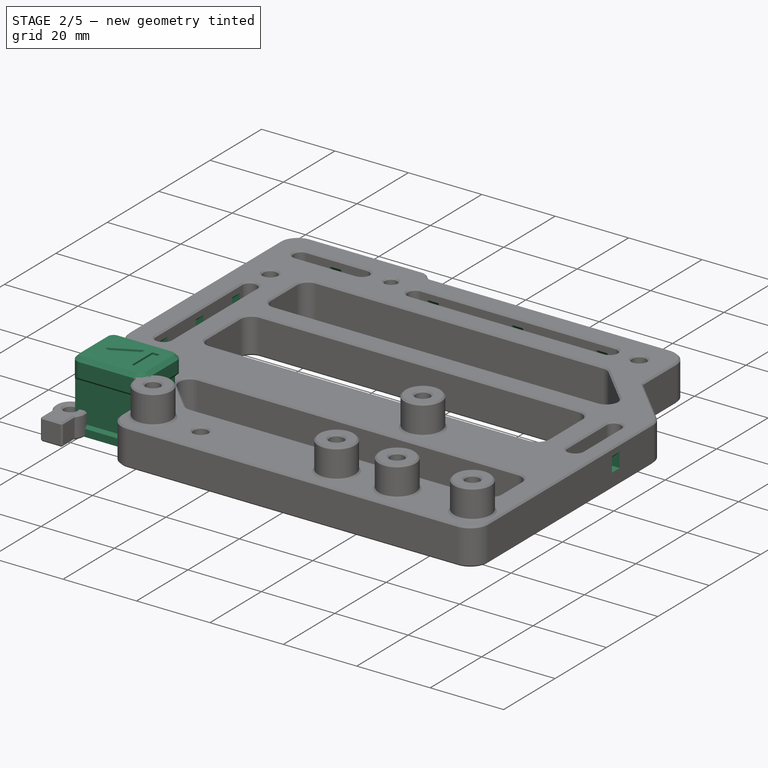
[diagram: stage 2 of 5 — iso view after this stage's code; geometry added in this stage tinted green]
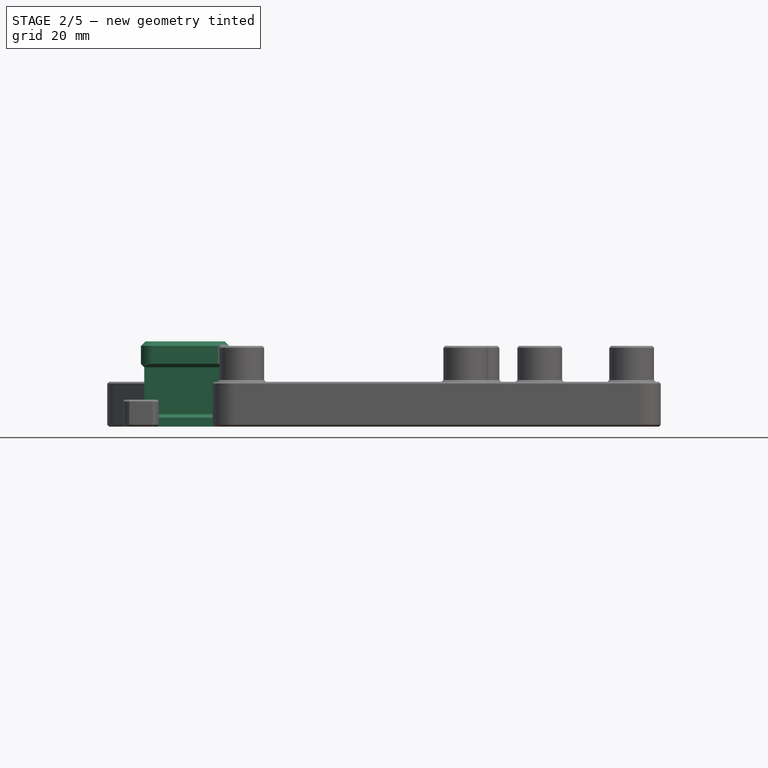
[diagram: stage 2 of 5 — front view after this stage's code; geometry added in this stage tinted green]
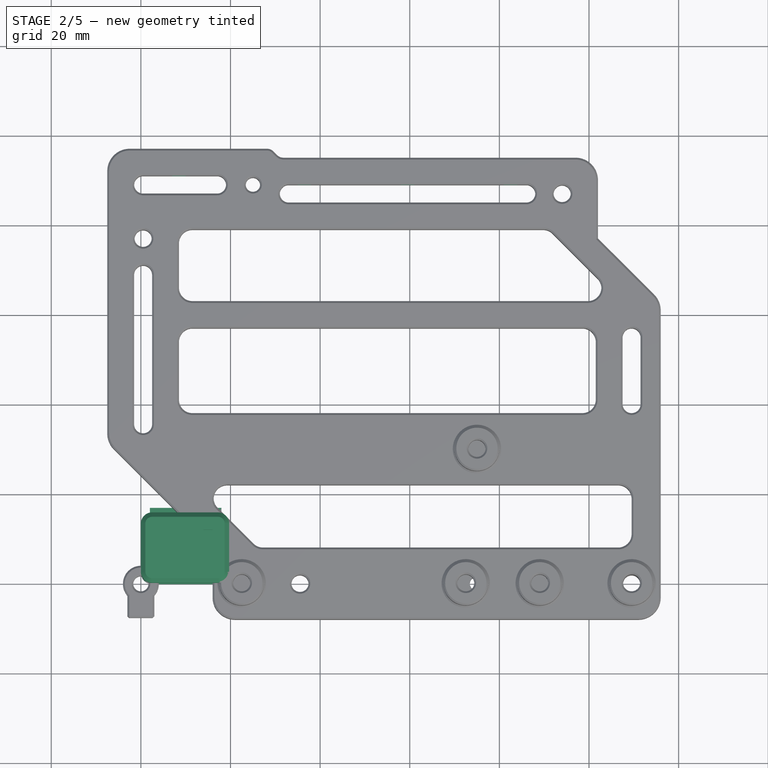
[diagram: stage 2 of 5 — top view after this stage's code; geometry added in this stage tinted green]
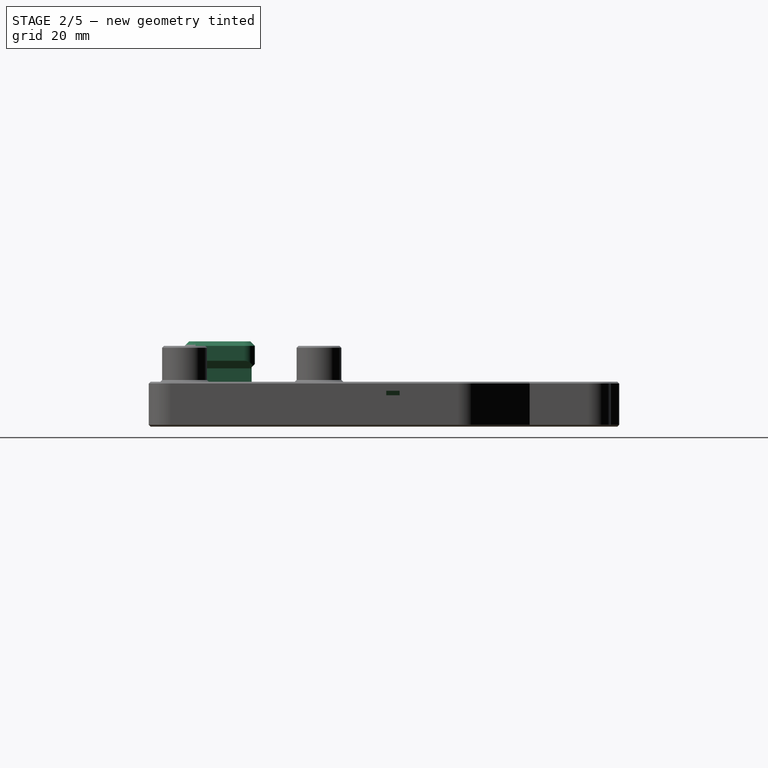
[diagram: stage 2 of 5 — right view after this stage's code; geometry added in this stage tinted green]
FEATURE [Part::Box] Box  label="Cube"
  AttacherType = Attacher::AttachEngine3D
  Height = 19
  Length = 19.7
  Width = 15.7
FEATURE [Part::Box] Box001  label="Cube001"
  AttacherType = Attacher::AttachEngine3D
  Height = 1
  Length = 16
  Placement = pos=(2,14,0) rot=(0,0,1;0rad)
  Width = 3
FEATURE [Part::Cylinder] Cylinder
  Angle = 360
  AttacherType = Attacher::AttachEngine3D
  Height = 3
  Placement = pos=(10,8,0) rot=(0,0,1;0rad)
  Radius = 4
FEATURE [Part::Box] Box002  label="Cube002"
  AttacherType = Attacher::AttachEngine3D
  Height = 16
  Length = 10
  Placement = pos=(18,-1,0) rot=(0,0,1;0rad)
  Width = 18
FEATURE [Part::Chamfer] Chamfer002
  Base = -> Box002
  Edges = 1 edges r=3: [Edge2]
FEATURE [Part::Fillet] Fillet009
  Base = -> Box
  Edges = 4 edges r=2.5: [Edge1,Edge3,Edge5,Edge7]
FEATURE [Part::Chamfer] Chamfer007
  Base = -> Fillet009
  Edges = 8 edges r=1: [Edge1,Edge5,Edge6,Edge7,Edge8,Edge9,Edge10,Edge11]
FEATURE [Part::Cut] Cut
  Base = -> Chamfer007
  Tool = -> Chamfer002
FEATURE [Part::MultiFuse] Fusion
  Shapes = -> [Cut,Box001]
FEATURE [Part::Box] Box025  label="Cube025"
  AttacherType = Attacher::AttachEngine3D
  Height = 12
  Length = 26
  Placement = pos=(-3,-15,2) rot=(0,0,1;0rad)
  Width = 10
FEATURE [Part::Chamfer] Chamfer009008004003002002004004004
  Base = -> Box025
  Edges = 2 edges r=0.75: [Edge11,Edge12]
  Placement = pos=(0,5.75,0) rot=(0,0,1;0rad)
FEATURE [Part::Feature] Chamfer009008004003002002004004004001
  Placement = pos=(5.75,16,0) rot=(0,0,-1;1.5708rad)
  shape: bbox 10 x 26 x 12 mm, 8 faces (baked)
FEATURE [Part::Feature] Chamfer009008004003002002004004004002
  Placement = pos=(20,9.95,0) rot=(0,0,1;3.14159rad)
  shape: bbox 26 x 10 x 12 mm, 8 faces (baked)
FEATURE [Part::MultiFuse] Fusion001004009016
  Shapes = -> [Chamfer009008004003002002004004004002,Chamfer009008004003002002004004004001,Chamfer009008004003002002004004004]
FEATURE [Part::Cut] Cut046
  Base = -> Fusion
  Tool = -> Body002011003001
FEATURE [Part::Cut] Cut047
  Base = -> Cut046
  Tool = -> Fusion001004009016
FEATURE [Sketcher::SketchObject] Sketch005
  FullyConstrained = true
  MapMode = 5
  Placement = pos=(-7.5,0,0) rot=(0.57735,-0.57735,-0.57735;2.0944rad)
  Support = -> [Chamfer]
  sketch-geometry (12):
    g0: LineSegment StartX=-68 StartY=7 StartZ=0 EndX=-65 EndY=7 EndZ=0
    g1: LineSegment StartX=-65 StartY=7 StartZ=0 EndX=-65 EndY=4 EndZ=0
    g2: LineSegment StartX=-65 StartY=4 StartZ=0 EndX=-68 EndY=4 EndZ=0
    g3: LineSegment StartX=-68 StartY=4 StartZ=0 EndX=-68 EndY=7 EndZ=0
    g4: LineSegment StartX=-54 StartY=7 StartZ=0 EndX=-51 EndY=7 EndZ=0
    g5: LineSegment StartX=-51 StartY=7 StartZ=0 EndX=-51 EndY=4 EndZ=0
    g6: LineSegment StartX=-51 StartY=4 StartZ=0 EndX=-54 EndY=4 EndZ=0
    g7: LineSegment StartX=-54 StartY=4 StartZ=0 EndX=-54 EndY=7 EndZ=0
    g8: LineSegment StartX=-40 StartY=7 StartZ=0 EndX=-37 EndY=7 EndZ=0
    g9: LineSegment StartX=-37 StartY=7 StartZ=0 EndX=-37 EndY=4 EndZ=0
    g10: LineSegment StartX=-37 StartY=4 StartZ=0 EndX=-40 EndY=4 EndZ=0
    g11: LineSegment StartX=-40 StartY=4 StartZ=0 EndX=-40 EndY=7 EndZ=0
  constraints (36):
    c: Coincident(g0,g1)
    c: Coincident(g1,g2)
    c: Coincident(g2,g3)
    c: Coincident(g3,g0)
    c: Horizontal(g0)
    c: Horizontal(g2)
    c: Vertical(g1)
    c: Vertical(g3)
    c: Coincident(g4,g5)
    c: Coincident(g5,g6)
    c: Coincident(g6,g7)
    c: Coincident(g7,g4)
    c: Horizontal(g4)
    c: Horizontal(g6)
    c: Vertical(g5)
    c: Vertical(g7)
    c: Coincident(g8,g9)
    c: Coincident(g9,g10)
    c: Coincident(g10,g11)
    c: Coincident(g11,g8)
    c: Horizontal(g8)
    c: Horizontal(g10)
    c: Vertical(g9)
    c: Vertical(g11)
    c: Horizontal(g1,g6)
    c: Horizontal(g6,g10)
    c: Horizontal(g0,g4)
    c: Horizontal(g4,g8)
    c: DistanceY(g3,g3) = 3
    c: DistanceX(g9,g-1) = 37
    c: DistanceX(g8,g8) = 3
    c: DistanceX(g4,g4) = 3
    c: DistanceX(g0,g0) = 3
    c: DistanceY(g-1,g9) = 4
    c: DistanceX(g5,g10) = 11
    c: DistanceX(g1,g6) = 11
FEATURE [PartDesign::Pocket] Pocket002
  BaseFeature = -> Chamfer
  Length = 0
  Length2 = 100
  Profile = -> Sketch005
  Type = 3
  UpToFace = -> Chamfer [Face101]
FEATURE [Sketcher::SketchObject] Sketch006
  FullyConstrained = true
  MapMode = 5
  Placement = pos=(116,0,0) rot=(0.57735,0.57735,0.57735;2.0944rad)
  Support = -> [Pocket002]
  sketch-geometry (4):
    g0: LineSegment StartX=45 StartY=7 StartZ=0 EndX=48 EndY=7 EndZ=0
    g1: LineSegment StartX=48 StartY=7 StartZ=0 EndX=48 EndY=4 EndZ=0
    g2: LineSegment StartX=48 StartY=4 StartZ=0 EndX=45 EndY=4 EndZ=0
    g3: LineSegment StartX=45 StartY=4 StartZ=0 EndX=45 EndY=7 EndZ=0
  constraints (12):
    c: Coincident(g0,g1)
    c: Coincident(g1,g2)
    c: Coincident(g2,g3)
    c: Coincident(g3,g0)
    c: Horizontal(g0)
    c: Horizontal(g2)
    c: Vertical(g1)
    c: Vertical(g3)
    c: DistanceX(g0,g0) = 3
    c: DistanceX(g-1,g2) = 45
    c: DistanceY(g1,g1) = 3
    c: DistanceY(g-1,g2) = 4
FEATURE [PartDesign::Pocket] Pocket003
  BaseFeature = -> Pocket002
  Length = 0
  Length2 = 100
  Profile = -> Sketch006
  Type = 3
  UpToFace = -> Pocket002 [Face106]
FEATURE [Sketcher::SketchObject] Sketch007
  FullyConstrained = true
  MapMode = 5
  Placement = pos=(0,97,0) rot=(0,0.707107,0.707107;3.14159rad)
  Support = -> [Pocket003]
  sketch-geometry (16):
    g0: LineSegment StartX=-84 StartY=7 StartZ=0 EndX=-81 EndY=7 EndZ=0
    g1: LineSegment StartX=-81 StartY=7 StartZ=0 EndX=-81 EndY=4 EndZ=0
    g2: LineSegment StartX=-81 StartY=4 StartZ=0 EndX=-84 EndY=4 EndZ=0
    g3: LineSegment StartX=-84 StartY=4 StartZ=0 EndX=-84 EndY=7 EndZ=0
    g4: LineSegment StartX=-61 StartY=7 StartZ=0 EndX=-58 EndY=7 EndZ=0
    g5: LineSegment StartX=-58 StartY=7 StartZ=0 EndX=-58 EndY=4 EndZ=0
    g6: LineSegment StartX=-58 StartY=4 StartZ=0 EndX=-61 EndY=4 EndZ=0
    g7: LineSegment StartX=-61 StartY=4 StartZ=0 EndX=-61 EndY=7 EndZ=0
    g8: LineSegment StartX=-38 StartY=7 StartZ=0 EndX=-35 EndY=7 EndZ=0
    g9: LineSegment StartX=-35 StartY=7 StartZ=0 EndX=-35 EndY=4 EndZ=0
    g10: LineSegment StartX=-35 StartY=4 StartZ=0 EndX=-38 EndY=4 EndZ=0
    g11: LineSegment StartX=-38 StartY=4 StartZ=0 EndX=-38 EndY=7 EndZ=0
    g12: LineSegment StartX=-10 StartY=7 StartZ=0 EndX=-7 EndY=7 EndZ=0
    g13: LineSegment StartX=-7 StartY=7 StartZ=0 EndX=-7 EndY=4 EndZ=0
    g14: LineSegment StartX=-7 StartY=4 StartZ=0 EndX=-10 EndY=4 EndZ=0
    g15: LineSegment StartX=-10 StartY=4 StartZ=0 EndX=-10 EndY=7 EndZ=0
  constraints (48):
    c: Coincident(g0,g1)
    c: Coincident(g1,g2)
    c: Coincident(g2,g3)
    c: Coincident(g3,g0)
    c: Horizontal(g0)
    c: Horizontal(g2)
    c: Vertical(g1)
    c: Vertical(g3)
    c: Coincident(g4,g5)
    c: Coincident(g5,g6)
    c: Coincident(g6,g7)
    c: Coincident(g7,g4)
    c: Horizontal(g4)
    c: Horizontal(g6)
    c: Vertical(g5)
    c: Vertical(g7)
    c: Coincident(g8,g9)
    c: Coincident(g9,g10)
    c: Coincident(g10,g11)
    c: Coincident(g11,g8)
    c: Horizontal(g8)
    c: Horizontal(g10)
    c: Vertical(g9)
    c: Vertical(g11)
    c: Coincident(g12,g13)
    c: Coincident(g13,g14)
    c: Coincident(g14,g15)
    c: Coincident(g15,g12)
    c: Horizontal(g12)
    c: Horizontal(g14)
    c: Vertical(g13)
    c: Vertical(g15)
    c: Horizontal(g2,g6)
    c: Horizontal(g6,g10)
    c: Horizontal(g10,g14)
    c: Horizontal(g0,g4)
    c: Horizontal(g4,g8)
    c: Horizontal(g8,g12)
    c: DistanceY(g1,g1) = 3
    c: DistanceX(g13,g-1) = 7
    c: DistanceY(g-1,g13) = 4
    c: DistanceX(g12,g12) = 3
    c: DistanceX(g8,g8) = 3
    c: DistanceX(g4,g4) = 3
    c: DistanceX(g0,g0) = 3
    c: DistanceX(g9,g14) = 25
    c: DistanceX(g5,g10) = 20
    c: DistanceX(g1,g6) = 20
FEATURE [PartDesign::Pocket] Pocket004
  BaseFeature = -> Pocket003
  Length = 0
  Length2 = 100
  Profile = -> Sketch007
  Type = 3
  UpToFace = -> Pocket003 [Face94]
FEATURE [PartDesign::Chamfer] Chamfer009008004003002002004004004004
  Angle = 45
  Base = -> Pocket004 [Edge226,Edge340,Edge240,Edge235,Edge231,Edge285,Edge289,Edge293,Edge328,Edge320,Edge314,Edge310,Edge260,Edge269,Edge273,Edge277]
  BaseFeature = -> Pocket004
  ChamferType = 0
  FlipDirection = false
  Size = 1
  Size2 = 1
  SupportTransform = false
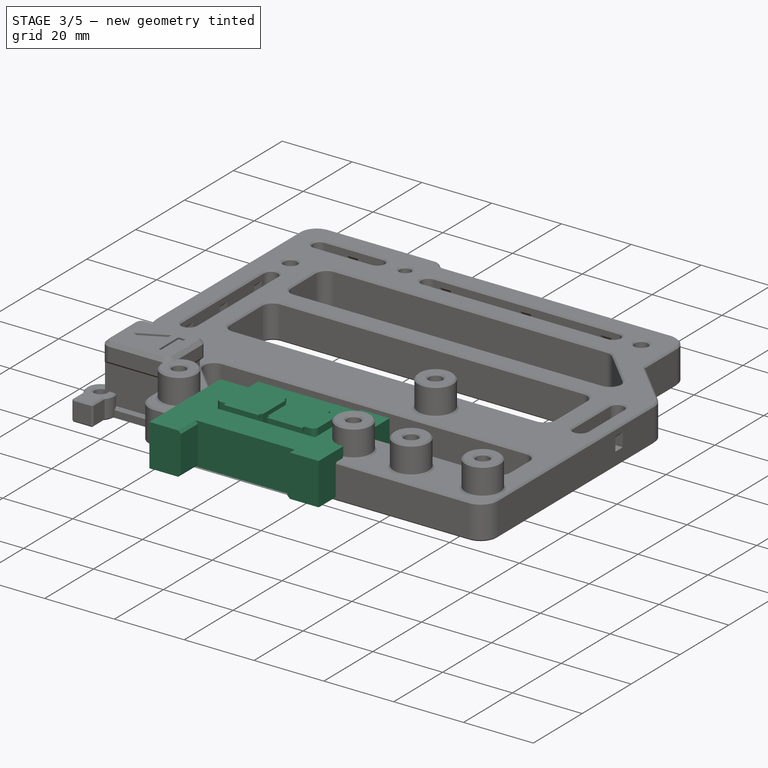
[diagram: stage 3 of 5 — iso view after this stage's code; geometry added in this stage tinted green]
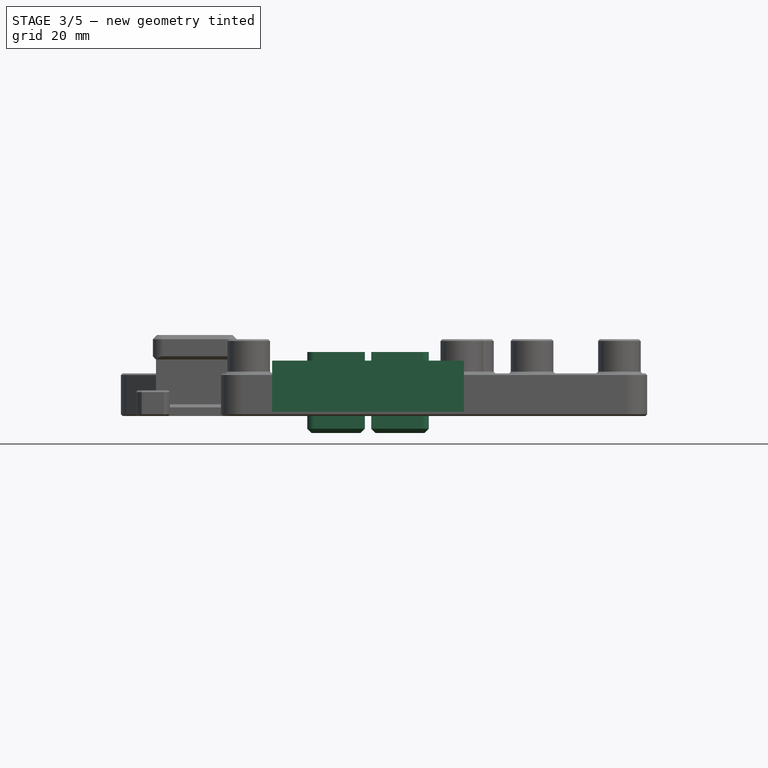
[diagram: stage 3 of 5 — front view after this stage's code; geometry added in this stage tinted green]
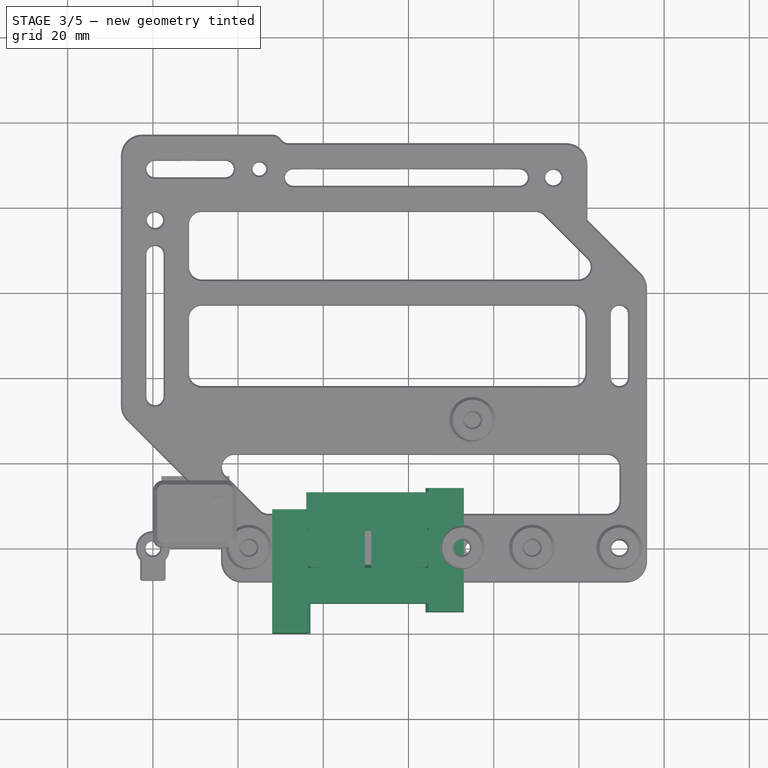
[diagram: stage 3 of 5 — top view after this stage's code; geometry added in this stage tinted green]
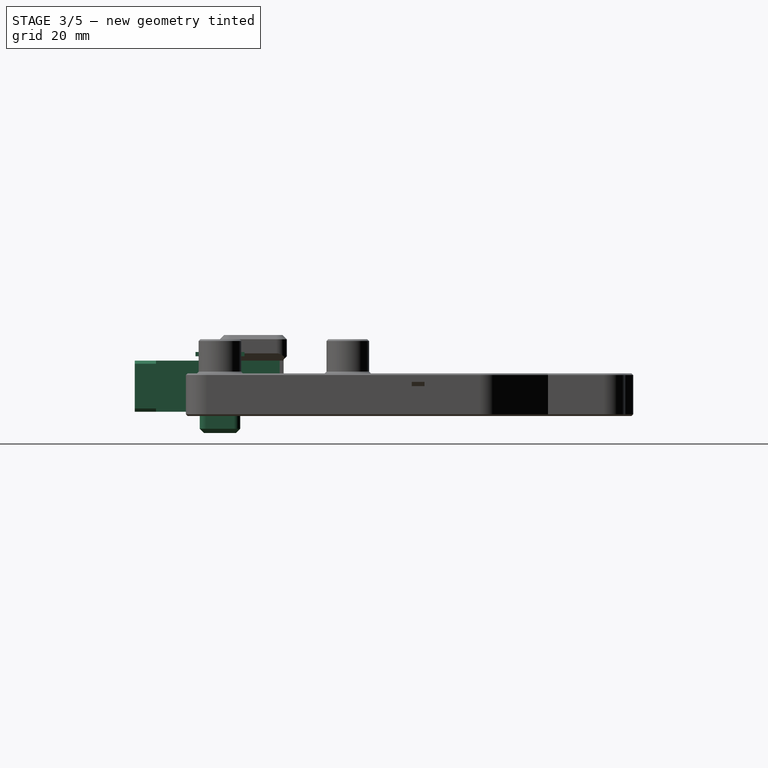
[diagram: stage 3 of 5 — right view after this stage's code; geometry added in this stage tinted green]
FEATURE [Part::Box] Box012  label="Cube012"
  AttacherType = Attacher::AttachEngine3D
  Height = 19
  Length = 13.5
  Placement = pos=(36.25,-4.75,-4) rot=(0,0,1;0rad)
  Width = 9.5
FEATURE [Part::Box] Box013  label="Cube013"
  AttacherType = Attacher::AttachEngine3D
  Height = 19
  Length = 13.5
  Placement = pos=(51.25,-4.75,-4) rot=(0,0,1;0rad)
  Width = 9.5
FEATURE [Part::Box] Box014  label="Cube014"
  AttacherType = Attacher::AttachEngine3D
  Height = 1
  Length = 10
  Placement = pos=(39.25,-5.75,14) rot=(0,0,1;0rad)
  Width = 2
FEATURE [Part::Box] Box015  label="Cube015"
  AttacherType = Attacher::AttachEngine3D
  Height = 1
  Length = 10
  Placement = pos=(39.25,3.75,14) rot=(0,0,1;0rad)
  Width = 2
FEATURE [Part::Box] Box016  label="Cube016"
  AttacherType = Attacher::AttachEngine3D
  Height = 1
  Length = 10
  Placement = pos=(51.75,3.75,14) rot=(0,0,1;0rad)
  Width = 2
FEATURE [Part::Box] Box017  label="Cube017"
  AttacherType = Attacher::AttachEngine3D
  Height = 1
  Length = 10
  Placement = pos=(51.75,-5.75,14) rot=(0,0,1;0rad)
  Width = 2
FEATURE [Part::Box] Box018  label="Cube018"
  AttacherType = Attacher::AttachEngine3D
  Height = 0.5
  Length = 3.5
  Placement = pos=(48.75,-4.75,2.5) rot=(0,0,1;0rad)
  Width = 9.5
FEATURE [Part::Feature] Body002011001
  shape: bbox 3 x 4 x 1 mm, 5 faces (baked)
FEATURE [Part::Feature] Body002011002
  Placement = pos=(3,0,0) rot=(0,0,1;0rad)
  shape: bbox 3 x 4 x 1 mm, 5 faces (baked)
FEATURE [Part::MultiFuse] Fusion001004009
  Placement = pos=(55,0,-3) rot=(0,0,1;0rad)
  Shapes = -> [Body002011002,Body002011001]
FEATURE [Part::Feature] Fusion001004009001
  Placement = pos=(46,1e-15,-3) rot=(0,0,1;3.14159rad)
  shape: bbox 6 x 4 x 1 mm, 11 faces, 2 solids (baked)
FEATURE [Part::MultiFuse] Fusion001004009002
  Placement = pos=(0,0,-1.5) rot=(0,0,1;0rad)
  Shapes = -> [Fusion001004009001,Fusion001004009]
FEATURE [Part::Box] Box024  label="Cube024"
  AttacherType = Attacher::AttachEngine3D
  Height = 12
  Length = 29
  Placement = pos=(36,4,1) rot=(0,0,1;0rad)
  Width = 9
FEATURE [Part::Chamfer] Chamfer009008004003002002004004
  Base = -> Box024
  Edges = 2 edges r=0.75: [Edge9,Edge10]
FEATURE [Part::Feature] Chamfer009008004003002002004004001
  Placement = pos=(41,-56,0) rot=(0,0,1;1.5708rad)
  shape: bbox 9 x 29 x 12 mm, 8 faces (baked)
FEATURE [Part::Feature] Chamfer009008004003002002004004002
  Placement = pos=(60,50,0) rot=(0,0,-1;1.5708rad)
  shape: bbox 9 x 29 x 12 mm, 8 faces (baked)
FEATURE [Part::Feature] Chamfer009008004003002002004004003
  Placement = pos=(101,-1.1e-14,0) rot=(0,0,1;3.14159rad)
  shape: bbox 29 x 9 x 12 mm, 8 faces (baked)
FEATURE [Part::MultiFuse] Fusion001004009015
  Shapes = -> [Chamfer009008004003002002004004003,Chamfer009008004003002002004004002,Chamfer009008004003002002004004001,Chamfer009008004003002002004004]
FEATURE [Part::MultiFuse] Fusion001004009017
  Shapes = -> [Box018,Box012,Box013,Box014,Box015,Box016,Box017]
FEATURE [Part::Fillet] Fillet004006
  Base = -> Fusion001004009017
  Edges = 4 edges r=1.5: [Edge12,Edge39,Edge63,Edge84]
FEATURE [Part::Chamfer] Chamfer009008004003002002004004004003
  Base = -> Fillet004006
  Edges = 12 edges r=1: [Edge11,Edge25,Edge30,Edge31,Edge32,Edge33,Edge73,Edge85,Edge92,Edge97,Edge98,Edge99]
FEATURE [Part::Cut] Cut043
  Base = -> Chamfer009008004003002002004004004003
  Tool = -> Fusion001004009002
FEATURE [Part::Cut] Cut048  label="play"
  Base = -> Cut047
  Tool = -> Cylinder
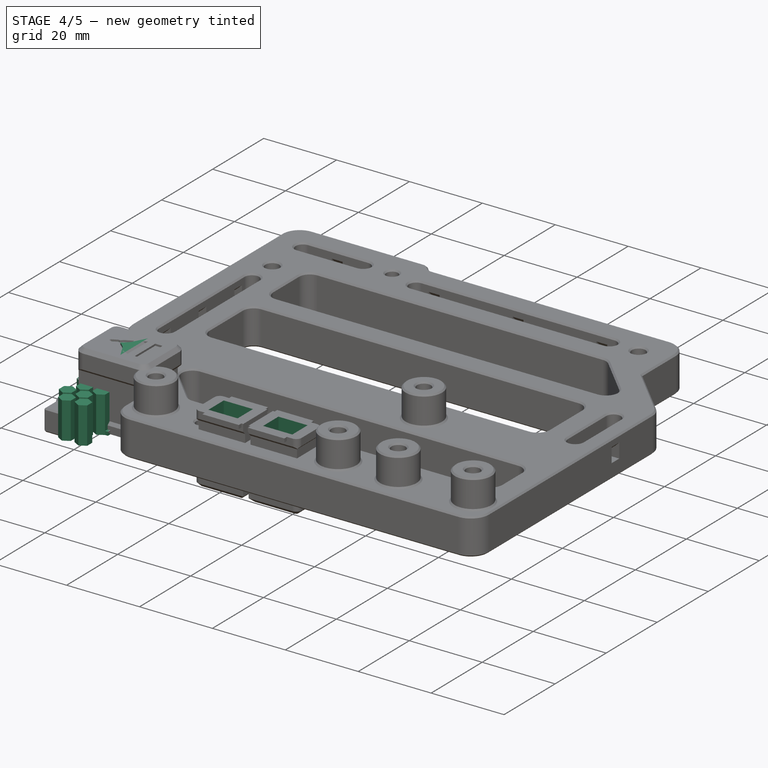
[diagram: stage 4 of 5 — iso view after this stage's code; geometry added in this stage tinted green]
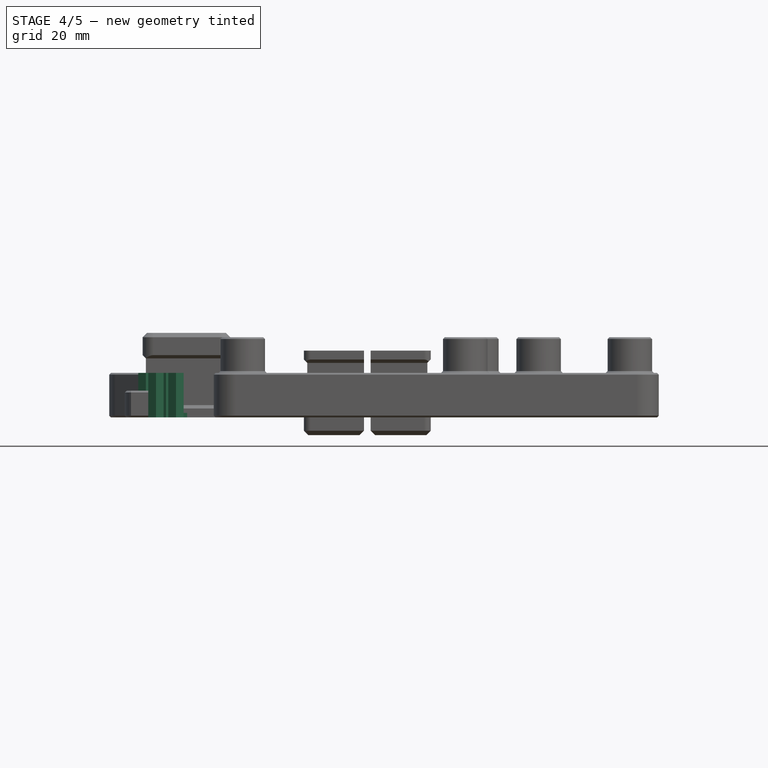
[diagram: stage 4 of 5 — front view after this stage's code; geometry added in this stage tinted green]
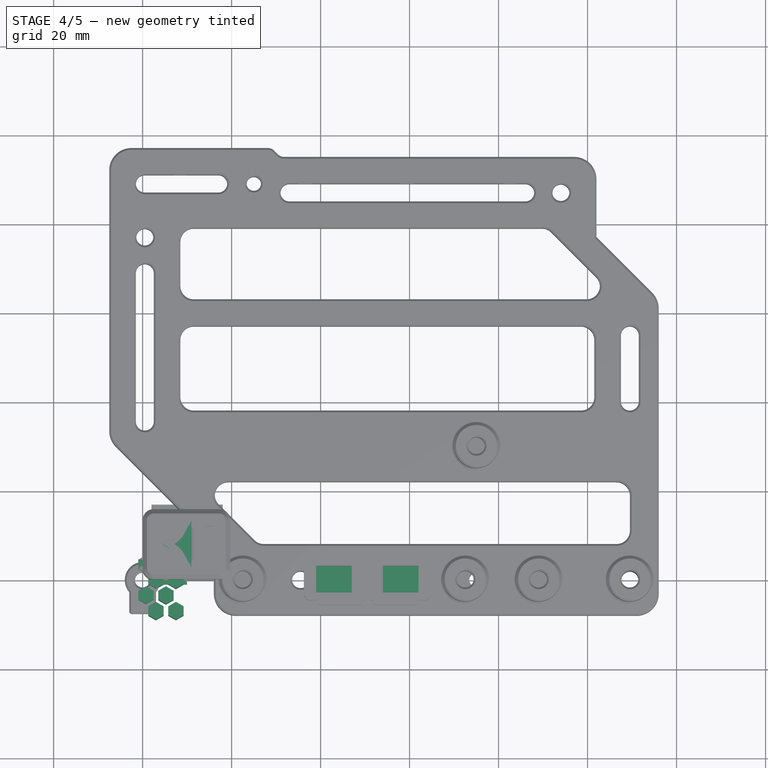
[diagram: stage 4 of 5 — top view after this stage's code; geometry added in this stage tinted green]
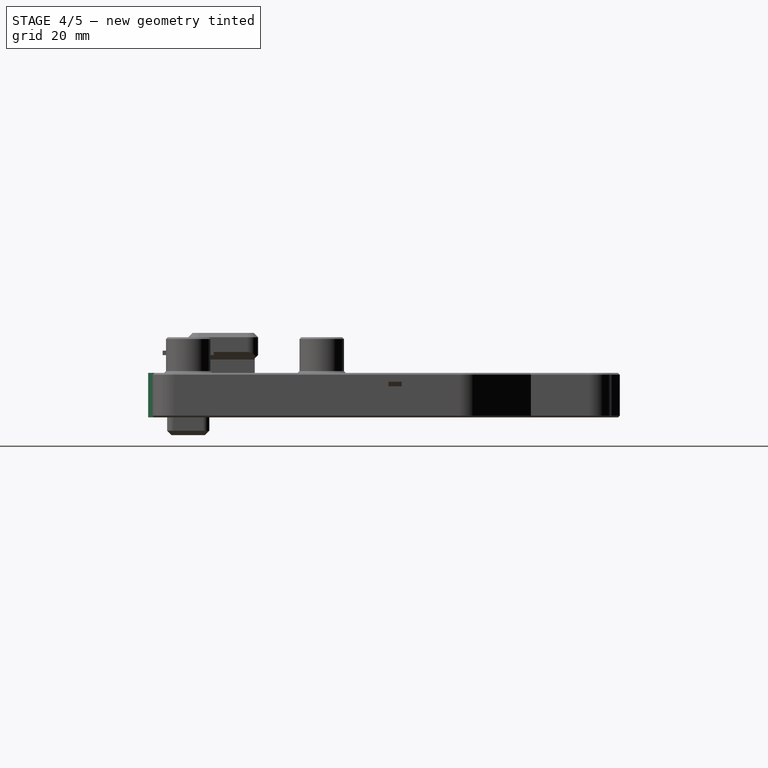
[diagram: stage 4 of 5 — right view after this stage's code; geometry added in this stage tinted green]
FEATURE [Part::Feature] Body002002
  Placement = pos=(3.5,-2,0) rot=(0,0,1;0rad)
  shape: bbox 3.464 x 4 x 10 mm, 8 faces (baked)
FEATURE [Part::Feature] Body002003
  Placement = pos=(1.25,-5.5,0) rot=(0,0,1;0rad)
  shape: bbox 3.464 x 4 x 10 mm, 8 faces (baked)
FEATURE [Part::Feature] Body002004
  Placement = pos=(-3.25,-5.5,0) rot=(0,0,1;0rad)
  shape: bbox 3.464 x 4 x 10 mm, 8 faces (baked)
FEATURE [Part::Feature] Body002005
  Placement = pos=(-3.25,1.5,0) rot=(0,0,1;0rad)
  shape: bbox 3.464 x 4 x 10 mm, 8 faces (baked)
FEATURE [Part::Feature] Body002006
  Placement = pos=(1.25,1.5,0) rot=(0,0,1;0rad)
  shape: bbox 3.464 x 4 x 10 mm, 8 faces (baked)
FEATURE [Part::Feature] Body002007
  Placement = pos=(-1,5,0) rot=(0,0,1;0rad)
  shape: bbox 3.464 x 4 x 10 mm, 8 faces (baked)
FEATURE [Part::Feature] Body002008
  Placement = pos=(3.5,-9,0) rot=(0,0,1;0rad)
  shape: bbox 3.464 x 4 x 10 mm, 8 faces (baked)
FEATURE [Part::Feature] Body002009
  Placement = pos=(3.5,5,0) rot=(0,0,1;0rad)
  shape: bbox 3.464 x 4 x 10 mm, 8 faces (baked)
FEATURE [Part::Feature] Body002010
  Placement = pos=(-1,-2,0) rot=(0,0,1;0rad)
  shape: bbox 3.464 x 4 x 10 mm, 8 faces (baked)
FEATURE [Part::MultiFuse] Fusion001
  Shapes = -> [Body002010,Body002009,Body002008,Body002007,Body002006,Body002002,Body002005,Body002004,Body002003,Body002001]
FEATURE [Part::Box] Box019  label="Cube019"
  AttacherType = Attacher::AttachEngine3D
  Height = 3.5
  Length = 8
  Placement = pos=(39,-3,12) rot=(0,0,1;0rad)
  Width = 6
FEATURE [Part::Box] Box020  label="Cube020"
  AttacherType = Attacher::AttachEngine3D
  Height = 3.5
  Length = 8
  Placement = pos=(54,-3,12) rot=(0,0,1;0rad)
  Width = 6
FEATURE [Part::Cylinder] Cylinder001
  Angle = 360
  AttacherType = Attacher::AttachEngine3D
  Height = 3
  Placement = pos=(6,8,0) rot=(0,0,1;0rad)
  Radius = 4
FEATURE [Part::Feature] Body002011003001
  Placement = pos=(16,7.85,22.5) rot=(0,1,0;3.14159rad)
  shape: bbox 21 x 8 x 4 mm, 16 faces (baked)
FEATURE [Part::Box] Box021  label="Cube021"
  AttacherType = Attacher::AttachEngine3D
  Height = 19
  Length = 12
  Width = 15.7
FEATURE [Part::Box] Box022  label="Cube022"
  AttacherType = Attacher::AttachEngine3D
  Height = 1
  Length = 8
  Placement = pos=(2,-1,0) rot=(0,0,1;0rad)
  Width = 2
FEATURE [Part::Fillet] Fillet010
  Base = -> Box021
  Edges = 4 edges r=2.5: [Edge1,Edge3,Edge5,Edge7]
FEATURE [Part::Chamfer] Chamfer008
  Base = -> Fillet010
  Edges = 8 edges r=1: [Edge1,Edge5,Edge6,Edge7,Edge8,Edge9,Edge10,Edge11]
FEATURE [Part::MultiFuse] Fusion001004009003  label="mode-btn-base"
  Shapes = -> [Box022,Chamfer008]
FEATURE [Part::Box] Box026  label="Cube026"
  AttacherType = Attacher::AttachEngine3D
  Height = 12
  Length = 24
  Placement = pos=(-5,-7,2) rot=(0,0,1;0rad)
  Width = 5
FEATURE [Part::MultiFuse] Fusion001004009012
  Placement = pos=(0,0,-0.5) rot=(0,0,1;0rad)
  Shapes = -> [Box020,Box019]
FEATURE [Part::Chamfer] Chamfer009008004003002002004
  Base = -> Box026
  Edges = 2 edges r=0.75: [Edge11,Edge12]
  Placement = pos=(0,2.75,0) rot=(0,0,1;0rad)
FEATURE [Part::Feature] Chamfer009008004003002002004001
  Placement = pos=(2.75,13.75,0) rot=(0,0,-1;1.5708rad)
  shape: bbox 5 x 24 x 12 mm, 8 faces (baked)
FEATURE [Part::Feature] Chamfer009008004003002002004002
  Placement = pos=(14,12.95,0) rot=(0,0,1;3.14159rad)
  shape: bbox 24 x 5 x 12 mm, 8 faces (baked)
FEATURE [Part::Feature] Chamfer009008004003002002004003
  Placement = pos=(9.25,3e-15,0) rot=(0,0,1;1.5708rad)
  shape: bbox 5 x 24 x 12 mm, 8 faces (baked)
FEATURE [Part::MultiFuse] Fusion001004009014
  Shapes = -> [Chamfer009008004003002002004003,Chamfer009008004003002002004002,Chamfer009008004003002002004001,Chamfer009008004003002002004]
FEATURE [Part::Cut] Cut040
  Base = -> Fusion001004009003
  Tool = -> Brilliant_Hango_Duup_1_001_solid001001
FEATURE [Part::Cut] Cut041
  Base = -> Cut040
  Tool = -> Fusion001004009014
FEATURE [Part::Cut] Cut042  label="mode"
  Base = -> Cut041
  Tool = -> Cylinder001
FEATURE [Part::Cut] Cut044
  Base = -> Cut043
  Tool = -> Fusion001004009015
FEATURE [Part::Cut] Cut045  label="next"
  Base = -> Cut044
  Tool = -> Fusion001004009012
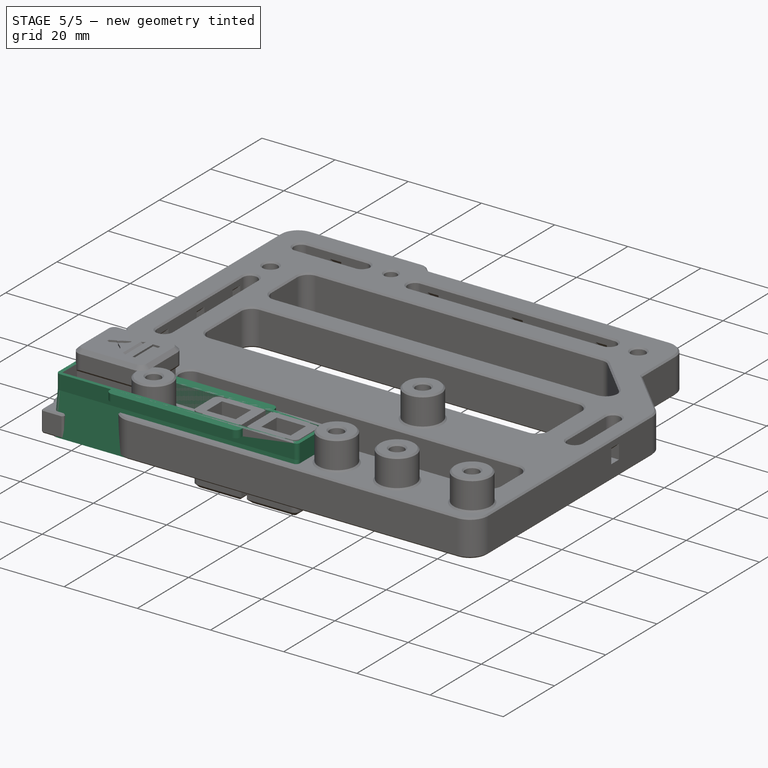
[diagram: stage 5 of 5 — iso view after this stage's code; geometry added in this stage tinted green]
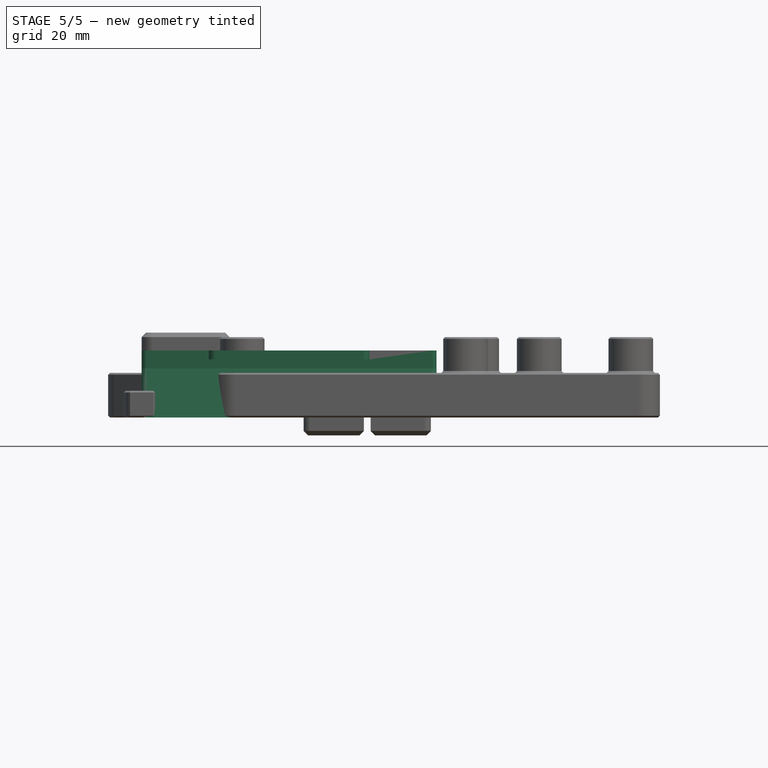
[diagram: stage 5 of 5 — front view after this stage's code; geometry added in this stage tinted green]
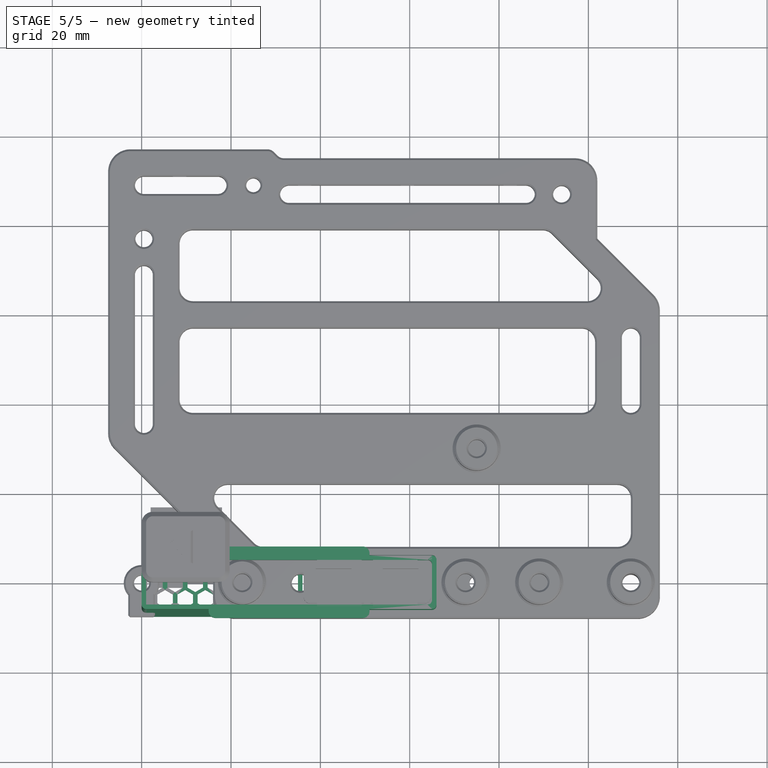
[diagram: stage 5 of 5 — top view after this stage's code; geometry added in this stage tinted green]
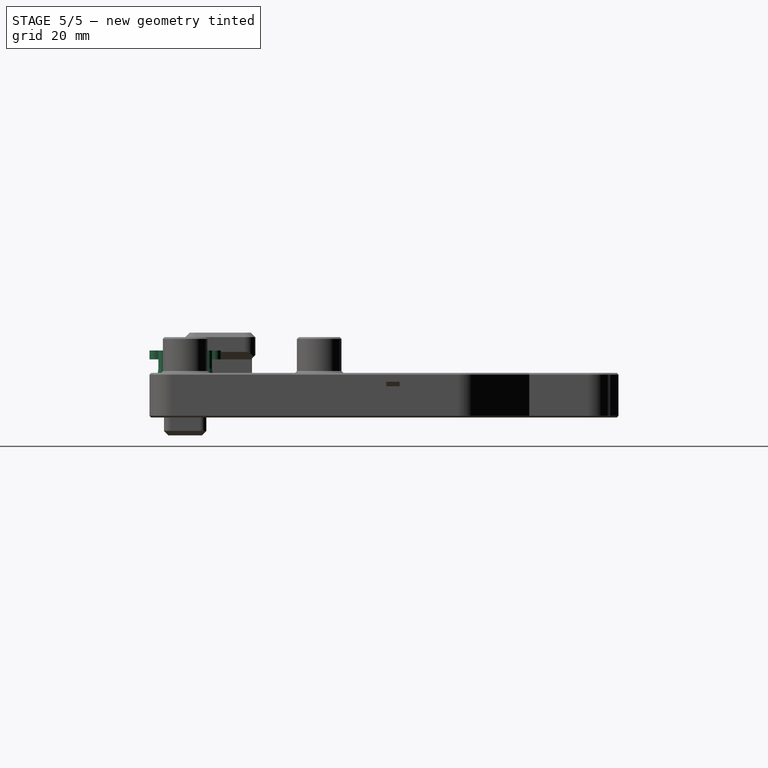
[diagram: stage 5 of 5 — right view after this stage's code; geometry added in this stage tinted green]
FEATURE [Sketcher::SketchObject] Sketch002
  FullyConstrained = true
  MapMode = 5
  Placement = pos=(0,0,0) rot=(0.57735,0.57735,0.57735;2.0944rad)
  Support = -> [YZ_Plane053]
  sketch-geometry (10):
    g0: LineSegment StartX=-7.5 StartY=0 StartZ=0 EndX=7.5 EndY=0 EndZ=0
    g1: LineSegment StartX=-7.5 StartY=0 StartZ=0 EndX=-6 EndY=11 EndZ=0
    g2: LineSegment StartX=-6 StartY=11 StartZ=0 EndX=-6 EndY=13 EndZ=0
    g3: LineSegment StartX=-6 StartY=13 StartZ=0 EndX=-8 EndY=13 EndZ=0
    g4: LineSegment StartX=-8 StartY=13 StartZ=0 EndX=-8 EndY=15 EndZ=0
    g5: LineSegment StartX=-8 StartY=15 StartZ=0 EndX=8 EndY=15 EndZ=0
    g6: LineSegment StartX=8 StartY=15 StartZ=0 EndX=8 EndY=13 EndZ=0
    g7: LineSegment StartX=8 StartY=13 StartZ=0 EndX=6 EndY=13 EndZ=0
    g8: LineSegment StartX=6 StartY=13 StartZ=0 EndX=6 EndY=11 EndZ=0
    g9: LineSegment StartX=6 StartY=11 StartZ=0 EndX=7.5 EndY=0 EndZ=0
  constraints (30):
    c: PointOnObject(g0,g-1)
    c: PointOnObject(g0,g-1)
    c: DistanceX(g0,g0) = 15
    c: DistanceX(g0,g-1) = 7.5
    c: Coincident(g1,g0)
    c: Coincident(g1,g2)
    c: Vertical(g2)
    c: Coincident(g2,g3)
    c: Coincident(g3,g4)
    c: Vertical(g4)
    c: Coincident(g4,g5)
    c: Horizontal(g5)
    c: Coincident(g5,g6)
    c: Vertical(g6)
    c: Coincident(g6,g7)
    c: Horizontal(g7)
    c: Coincident(g7,g8)
    c: Coincident(g8,g9)
    c: Coincident(g9,g0)
    c: DistanceX(g5,g5) = 16
    c: DistanceX(g4,g-1) = 8
    c: Horizontal(g3)
    c: DistanceX(g3,g3) = 2
    c: DistanceY(g4,g4) = 2
    c: DistanceY(g6,g6) = 2
    c: DistanceY(g0,g4) = 15
    c: DistanceX(g7,g7) = 2
    c: Vertical(g8)
    c: Horizontal(g1,g8)
    c: DistanceY(g0,g8) = 11
FEATURE [PartDesign::Pad] Pad002
  Direction = (1,1,1)
  Length = 66
  Length2 = 100
  Placement = pos=(0,0,0) rot=(0.57735,0.57735,0.57735;2.0944rad)
  Profile = -> Sketch002
  Type = 0
FEATURE [Sketcher::SketchObject] Sketch003
  FullyConstrained = true
  MapMode = 5
  Placement = pos=(-4.2e-15,6.6e-15,15) rot=(0,0,-1;1.5708rad)
  Support = -> [Pad002]
  sketch-geometry (4):
    g0: LineSegment StartX=-5 StartY=65 StartZ=0 EndX=5 EndY=65 EndZ=0
    g1: LineSegment StartX=5 StartY=65 StartZ=0 EndX=5 EndY=1 EndZ=0
    g2: LineSegment StartX=5 StartY=1 StartZ=0 EndX=-5 EndY=1 EndZ=0
    g3: LineSegment StartX=-5 StartY=1 StartZ=0 EndX=-5 EndY=65 EndZ=0
  constraints (12):
    c: Coincident(g0,g1)
    c: Coincident(g1,g2)
    c: Coincident(g2,g3)
    c: Coincident(g3,g0)
    c: Horizontal(g0)
    c: Horizontal(g2)
    c: Vertical(g1)
    c: Vertical(g3)
    c: DistanceY(g1,g1) = 64
    c: DistanceX(g2,g2) = 10
    c: DistanceX(g-1,g1) = 5
    c: DistanceY(g-1,g1) = 1
FEATURE [PartDesign::Pocket] Pocket
  BaseFeature = -> Pad002
  Length = 5
  Length2 = 100
  Placement = pos=(0,0,0) rot=(0.57735,0.57735,0.57735;2.0944rad)
  Profile = -> Sketch003
  Type = 1
FEATURE [Sketcher::SketchObject] Sketch004
  FullyConstrained = true
  MapMode = 5
  Placement = pos=(-4.2e-15,6.6e-15,15) rot=(0,0,-1;1.5708rad)
  Support = -> [Pocket]
  sketch-geometry (16):
    g0: LineSegment StartX=-8 StartY=0 StartZ=0 EndX=-6 EndY=0 EndZ=0
    g1: LineSegment StartX=-6 StartY=0 StartZ=0 EndX=-6 EndY=15 EndZ=0
    g2: LineSegment StartX=-6 StartY=15 StartZ=0 EndX=-8 EndY=15 EndZ=0
    g3: LineSegment StartX=-8 StartY=15 StartZ=0 EndX=-8 EndY=0 EndZ=0
    g4: LineSegment StartX=6 StartY=15 StartZ=0 EndX=8 EndY=15 EndZ=0
    g5: LineSegment StartX=8 StartY=15 StartZ=0 EndX=8 EndY=0 EndZ=0
    g6: LineSegment StartX=8 StartY=0 StartZ=0 EndX=6 EndY=0 EndZ=0
    g7: LineSegment StartX=6 StartY=0 StartZ=0 EndX=6 EndY=15 EndZ=0
    g8: LineSegment StartX=-8 StartY=66 StartZ=0 EndX=-6 EndY=66 EndZ=0
    g9: LineSegment StartX=-6 StartY=66 StartZ=0 EndX=-6 EndY=51 EndZ=0
    g10: LineSegment StartX=-6 StartY=51 StartZ=0 EndX=-8 EndY=51 EndZ=0
    g11: LineSegment StartX=-8 StartY=51 StartZ=0 EndX=-8 EndY=66 EndZ=0
    g12: LineSegment StartX=6 StartY=66 StartZ=0 EndX=8 EndY=66 EndZ=0
    g13: LineSegment StartX=8 StartY=66 StartZ=0 EndX=8 EndY=51 EndZ=0
    g14: LineSegment StartX=8 StartY=51 StartZ=0 EndX=6 EndY=51 EndZ=0
    g15: LineSegment StartX=6 StartY=51 StartZ=0 EndX=6 EndY=66 EndZ=0
  constraints (48):
    c: Coincident(g0,g1)
    c: Coincident(g1,g2)
    c: Coincident(g2,g3)
    c: Coincident(g3,g0)
    c: Horizontal(g0)
    c: Horizontal(g2)
    c: Vertical(g1)
    c: Vertical(g3)
    c: PointOnObject(g0,g-1)
    c: Coincident(g4,g5)
    c: Coincident(g5,g6)
    c: Coincident(g6,g7)
    c: Coincident(g7,g4)
    c: Horizontal(g4)
    c: Horizontal(g6)
    c: Vertical(g5)
    c: Vertical(g7)
    c: PointOnObject(g5,g-1)
    c: Coincident(g8,g9)
    c: Coincident(g9,g10)
    c: Coincident(g10,g11)
    c: Coincident(g11,g8)
    c: Horizontal(g8)
    c: Horizontal(g10)
    c: Vertical(g9)
    c: Vertical(g11)
    c: Coincident(g12,g13)
    c: Coincident(g13,g14)
    c: Coincident(g14,g15)
    c: Coincident(g15,g12)
    c: Horizontal(g12)
    c: Horizontal(g14)
    c: Vertical(g13)
    c: Vertical(g15)
    c: DistanceY(g1,g1) = 15
    c: Horizontal(g4,g1)
    c: Horizontal(g9,g14)
    c: Horizontal(g12,g8)
    c: DistanceY(g9,g9) = 15
    c: DistanceX(g8,g8) = 2
    c: DistanceX(g12,g12) = 2
    c: DistanceX(g2,g2) = 2
    c: DistanceX(g4,g4) = 2
    c: DistanceX(g0,g-1) = 6
    c: DistanceX(g-1,g6) = 6
    c: DistanceY(g1,g9) = 36
    c: Vertical(g1,g9)
    c: Vertical(g14,g4)
FEATURE [PartDesign::Pocket] Pocket001
  BaseFeature = -> Pocket
  Length = 2
  Length2 = 100
  Placement = pos=(0,0,0) rot=(0.57735,0.57735,0.57735;2.0944rad)
  Profile = -> Sketch004
  Refine = true
  Type = 0
FEATURE [Part::Feature] Body002001
  Placement = pos=(-1,-9,0) rot=(0,0,1;0rad)
  shape: bbox 3.464 x 4 x 10 mm, 8 faces (baked)
FEATURE [Part::Box] Box006  label="Cube006"
  AttacherType = Attacher::AttachEngine3D
  Height = 3
  Length = 36
  Placement = pos=(0,-6,0) rot=(0,0,1;0rad)
  Width = 12
FEATURE [Part::Feature] Fusion001001
  Placement = pos=(9,0,0) rot=(0,0,1;0rad)
  shape: bbox 10.21 x 18 x 10 mm, 80 faces, 10 solids (baked)
FEATURE [Part::Feature] Fusion001002
  Placement = pos=(18,0,0) rot=(0,0,1;0rad)
  shape: bbox 10.21 x 18 x 10 mm, 80 faces, 10 solids (baked)
FEATURE [Part::Feature] Fusion001003
  Placement = pos=(27,0,0) rot=(0,0,1;0rad)
  shape: bbox 10.21 x 18 x 10 mm, 80 faces, 10 solids (baked)
FEATURE [Part::MultiFuse] Fusion001004
  Shapes = -> [Fusion001003,Fusion001,Fusion001001,Fusion001002]
FEATURE [Part::Feature] Fusion001004001
  shape: bbox 37.21 x 18 x 10 mm, 320 faces, 40 solids (baked)
FEATURE [Part::Box] Box008  label="Cube008"
  AttacherType = Attacher::AttachEngine3D
  Height = 10
  Length = 3
  Placement = pos=(-2,-11.25,0) rot=(0,0,1;0rad)
  Width = 22
FEATURE [Part::Box] Box009  label="Cube009"
  AttacherType = Attacher::AttachEngine3D
  Height = 10
  Length = 38
  Placement = pos=(-1,-11.5,0) rot=(0,0,1;0rad)
  Width = 5
FEATURE [Part::Box] Box010  label="Cube010"
  AttacherType = Attacher::AttachEngine3D
  Height = 10
  Length = 38
  Placement = pos=(-1,6.5,0) rot=(0,0,1;0rad)
  Width = 5
FEATURE [Part::Box] Box011  label="Cube011"
  AttacherType = Attacher::AttachEngine3D
  Height = 10
  Length = 3
  Placement = pos=(35,-11.25,0) rot=(0,0,1;0rad)
  Width = 22
FEATURE [Part::MultiFuse] Fusion001004003
  Shapes = -> [Box011,Box008,Box009,Box010]
FEATURE [Part::Cut] Cut004
  Base = -> Fusion001004001
  Placement = pos=(0,0,-9) rot=(0,0,1;0rad)
  Tool = -> Fusion001004003
FEATURE [Part::Box] Box007  label="Cube007"
  AttacherType = Attacher::AttachEngine3D
  Height = 3
  Length = 1
  Placement = pos=(35,-6,0) rot=(0,0,1;0rad)
  Width = 12
FEATURE [Part::Cut] Cut005
  Base = -> Box006
  Tool = -> Fusion001004
FEATURE [Part::Feature] Brilliant_Hango_Duup_1_001_solid001001  label="bluetooth-icon"
  Placement = pos=(19.25,19,18.5) rot=(0,0,1;0rad)
  shape: bbox 6.516 x 10.37 x 7 mm, 560 faces (baked)
FEATURE [PartDesign::Fillet] Fillet004003
  Base = -> Pocket001 [Edge40,Edge52,Edge49,Edge46]
  BaseFeature = -> Pocket001
  Placement = pos=(0,0,0) rot=(0.57735,0.57735,0.57735;2.0944rad)
  Radius = 1.5
  SupportTransform = false
FEATURE [PartDesign::Fillet] Fillet004004
  Base = -> Fillet004003 [Edge35,Edge34,Edge30,Edge33,Edge27,Edge49,Edge42,Edge50]
  BaseFeature = -> Fillet004003
  Placement = pos=(0,0,0) rot=(0.57735,0.57735,0.57735;2.0944rad)
  Radius = 1
  SupportTransform = false
FEATURE [PartDesign::Body] Body001
  Group = -> [Sketch002,Pad002,Sketch003,Pocket,Sketch004,Pocket001,Fillet004003,Fillet004004]
  Origin = -> Origin053
  Tip = -> Fillet004004
FEATURE [Part::Feature] Body001001
  shape: bbox 66 x 16 x 15.14 mm, 32 faces (baked)
FEATURE [Part::MultiFuse] Fusion001004009004
  Shapes = -> [Body001001,Box007,Cut005]
FEATURE [Part::Cut] Cut013
  Base = -> Fusion001004009004
  Refine = true
  Tool = -> Cut004
FEATURE [Part::Fillet] Fillet004005
  Base = -> Cut013
  Edges = 4 edges r=1: [Edge66,Edge68,Edge101,Edge135]
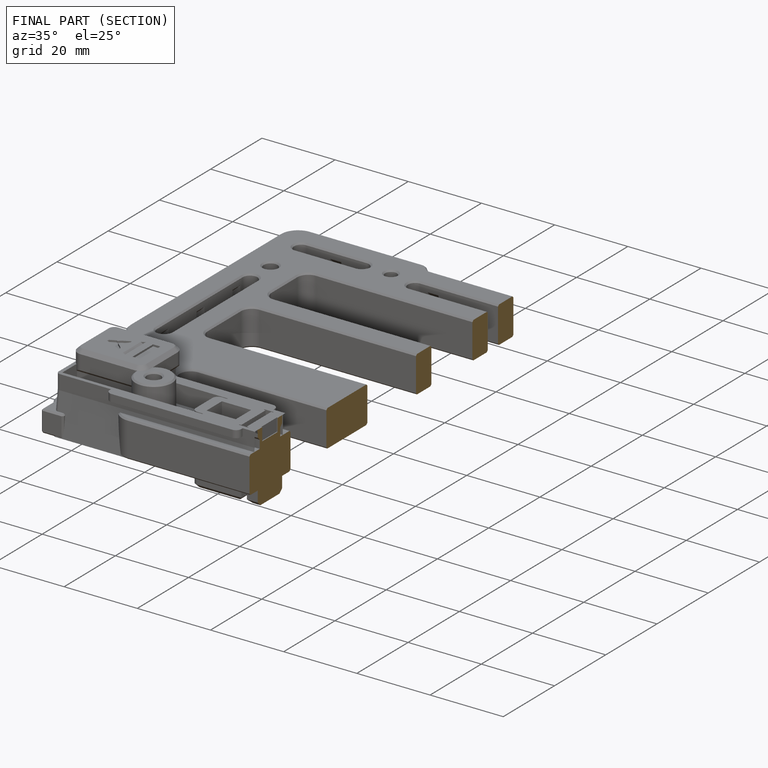
[diagram: finished part — half-section view (interior)]
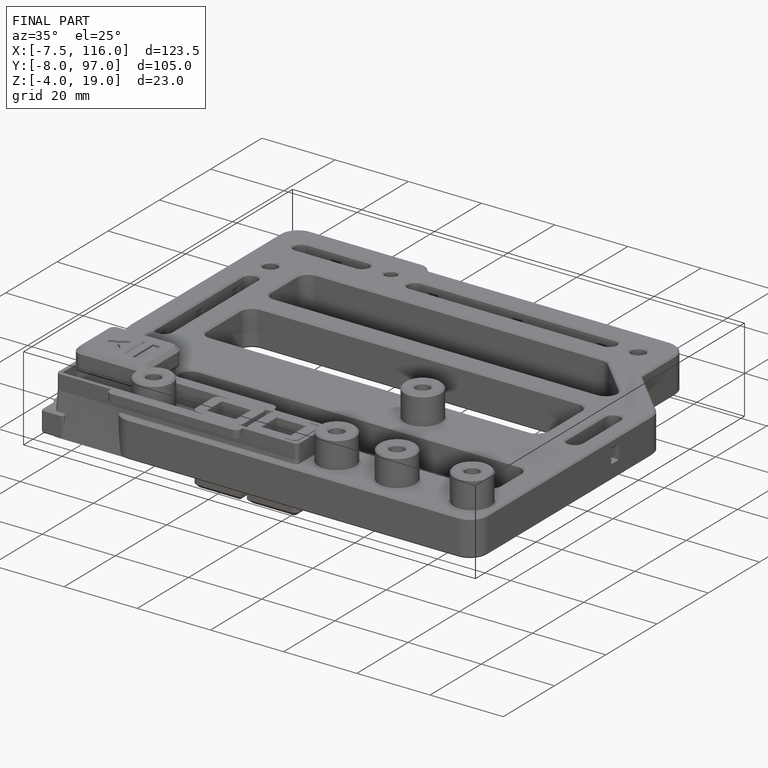
[diagram: finished part — iso view with bounding-box wireframe]
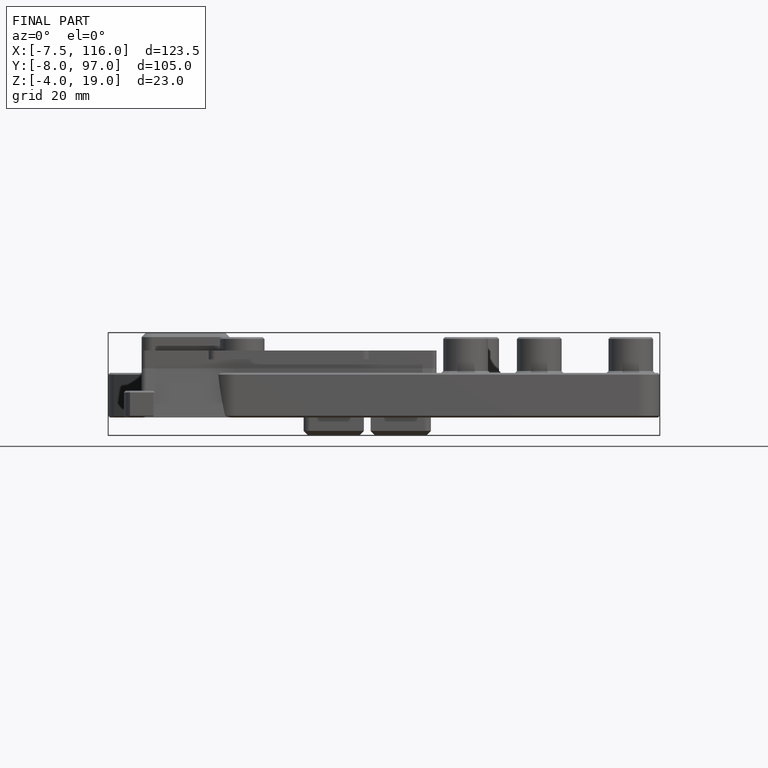
[diagram: finished part — front view with bounding-box wireframe]
